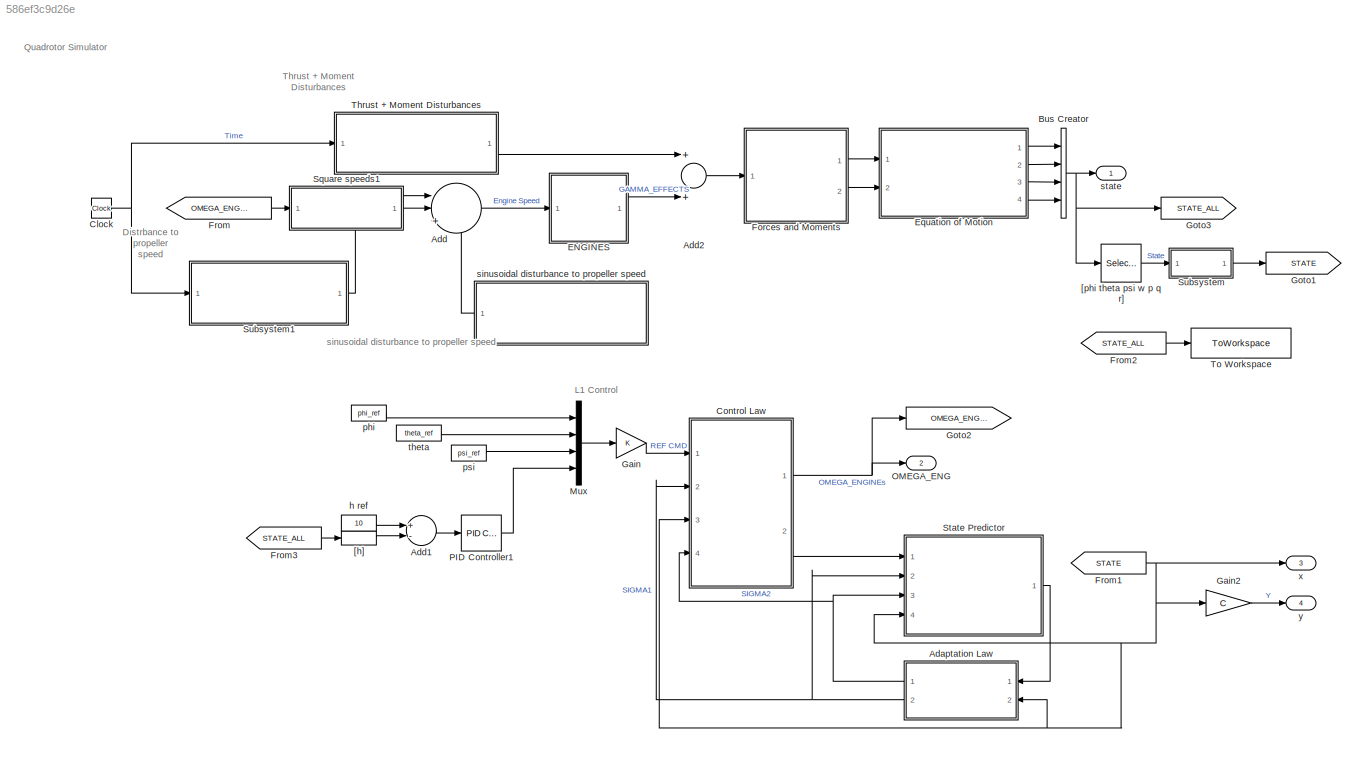
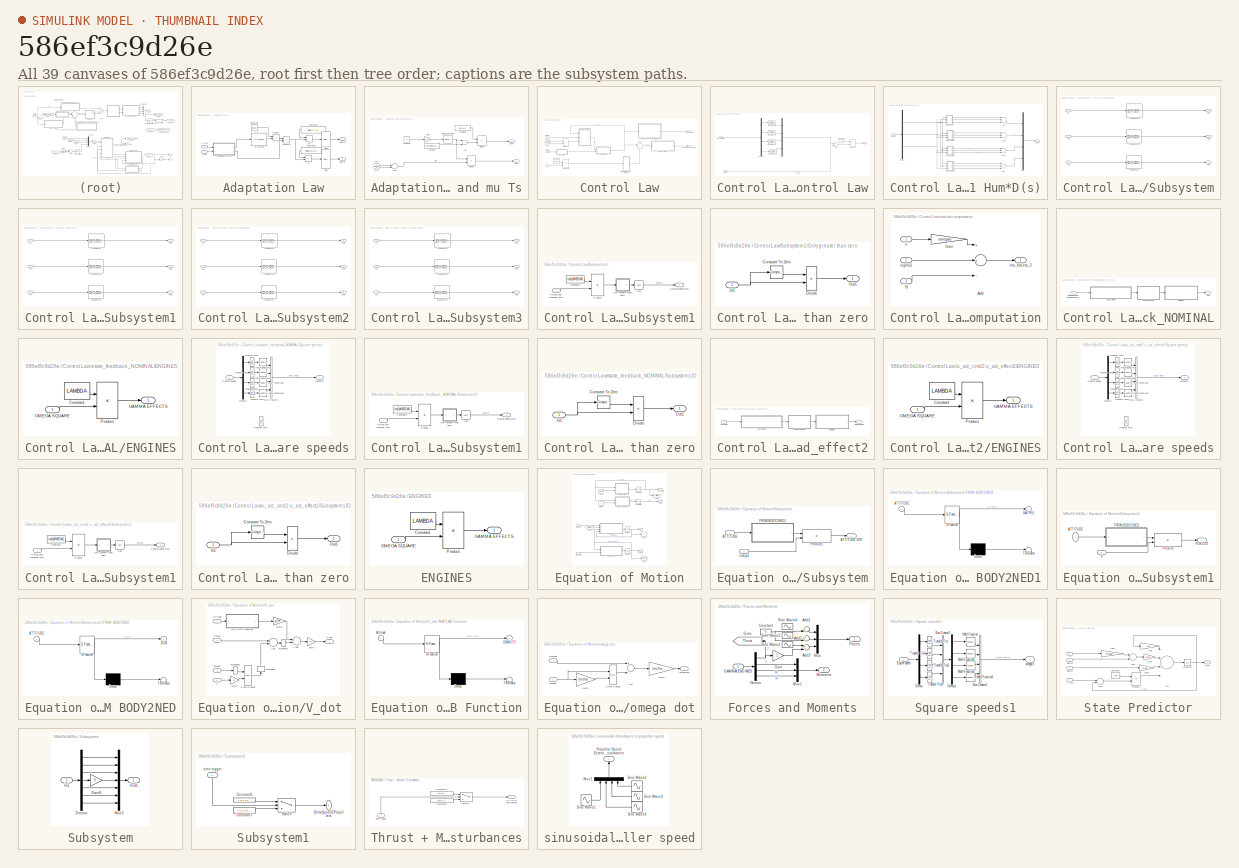
[diagram: thumbnail index - all 39 canvases of the model, root first then tree order]
MODEL slx_586ef3c9d26e
KIND model
CONFIG AbsTol = auto
CONFIG EnableMultiTasking = off
CONFIG FixedStep = Ts
CONFIG MaxStep = auto
CONFIG MinStep = auto
CONFIG RelTol = 1e-3
CONFIG SampleTimeConstraint = Unconstrained
CONFIG Solver = ode4
CONFIG SolverName = ode4
CONFIG StartTime = 0.0
CONFIG StopTime = 150
BLOCK [SubSystem] Adaptation Law
  Ports = [2, 2]
  RequestExecContextInheritance = off
  Variant = off
BLOCK [Reference] Adaptation Law/ LU Inverse  REF=dspinverses/ LU Inverse
  Ports = [1, 1]
  SourceBlock = dspinverses/ LU Inverse
  SourceProductBaseCode = DS
  SourceProductName = DSP System Toolbox
  SourceType = LU Inverse
BLOCK [Constant] Adaptation Law/Constant
  Value = -inv(B)
BLOCK [Constant] Adaptation Law/Constant1
  Value = diag([1 1 1 1 0 0 0])
BLOCK [Constant] Adaptation Law/Constant2
  Value = diag([0 0 0 0 1 1 1])
BLOCK [Product] Adaptation Law/Product
  InputSameDT = off
  Multiplication = Matrix(*)
  OutDataTypeStr = Inherit: Inherit via internal rule
  Ports = [2, 1]
  RndMeth = Floor
  SaturateOnIntegerOverflow = off
BLOCK [Product] Adaptation Law/Product1
  InputSameDT = off
  Multiplication = Matrix(*)
  OutDataTypeStr = Inherit: Inherit via internal rule
  Ports = [2, 1]
  RndMeth = Floor
  SaturateOnIntegerOverflow = off
BLOCK [Selector] Adaptation Law/Sig1
  IndexOptions = Index vector (dialog)
  Indices = [1 2 3 4]
  InputPortWidth = 7
  OutputSizes = 1
  Ports = [1, 1]
BLOCK [Selector] Adaptation Law/Sig2
  IndexOptions = Index vector (dialog)
  Indices = [5 6 7]
  InputPortWidth = 7
  OutputSizes = 1
  Ports = [1, 1]
BLOCK [SubSystem] Adaptation Law/phi and mu Ts
  Ports = [2, 2]
  RequestExecContextInheritance = off
  Variant = off
BLOCK [Sum] Adaptation Law/phi and mu Ts/Add
  InputSameDT = off
  Inputs = +-
  OutDataTypeStr = Inherit: Inherit via internal rule
  Ports = [2, 1]
  SaturateOnIntegerOverflow = off
BLOCK [Sum] Adaptation Law/phi and mu Ts/Add1
  InputSameDT = off
  Inputs = +-
  OutDataTypeStr = Inherit: Inherit via internal rule
  Ports = [2, 1]
  SaturateOnIntegerOverflow = off
BLOCK [Constant] Adaptation Law/phi and mu Ts/Constant
  Value = eye(size(Am))
BLOCK [Constant] Adaptation Law/phi and mu Ts/Constant1
  Value = inv(Am)
BLOCK [Constant] Adaptation Law/phi and mu Ts/Constant2
  Value = Ts
BLOCK [Product] Adaptation Law/phi and mu Ts/Divide1
  InputSameDT = off
  Inputs = **
  Multiplication = Matrix(*)
  OutDataTypeStr = Inherit: Inherit via internal rule
  Ports = [2, 1]
  RndMeth = Floor
  SaturateOnIntegerOverflow = off
BLOCK [Product] Adaptation Law/phi and mu Ts/Divide2
  InputSameDT = off
  Inputs = **
  Multiplication = Matrix(*)
  OutDataTypeStr = Inherit: Inherit via internal rule
  Ports = [2, 1]
  RndMeth = Floor
  SaturateOnIntegerOverflow = off
BLOCK [Gain] Adaptation Law/phi and mu Ts/Gain
  Gain = Am
  OutDataTypeStr = Inherit: Inherit via internal rule
  ParamDataTypeStr = Inherit: Inherit via internal rule
  SaturateOnIntegerOverflow = off
BLOCK [Reference] Adaptation Law/phi and mu Ts/Matrix Exponential  REF=dspmtrx3/Matrix
Exponential
  Ports = [1, 1]
  SourceBlock = dspmtrx3/Matrix\nExponential
  SourceProductBaseCode = DS
  SourceProductName = DSP System Toolbox
  SourceType = Matrix Exponential
BLOCK [Outport] Adaptation Law/phi and mu Ts/mu Ts
  IconDisplay = Port number
  Port = 2
BLOCK [Outport] Adaptation Law/phi and mu Ts/phi Ts
  IconDisplay = Port number
BLOCK [Inport] Adaptation Law/phi and mu Ts/x hat
  IconDisplay = Port number
  Port = 2
BLOCK [Inport] Adaptation Law/phi and mu Ts/x true
  IconDisplay = Port number
BLOCK [Product] Adaptation Law/s1
  InputSameDT = off
  Multiplication = Matrix(*)
  OutDataTypeStr = Inherit: Inherit via internal rule
  Ports = [2, 1]
  RndMeth = Floor
  SaturateOnIntegerOverflow = off
BLOCK [Product] Adaptation Law/s2
  InputSameDT = off
  Multiplication = Matrix(*)
  OutDataTypeStr = Inherit: Inherit via internal rule
  Ports = [2, 1]
  RndMeth = Floor
  SaturateOnIntegerOverflow = off
BLOCK [Outport] Adaptation Law/sigma1
  IconDisplay = Port number
  Port = 2
BLOCK [Outport] Adaptation Law/sigma2
  IconDisplay = Port number
BLOCK [Inport] Adaptation Law/x hat
  IconDisplay = Port number
BLOCK [Inport] Adaptation Law/x true
  IconDisplay = Port number
  Port = 2
BLOCK [Sum] Add
  IconShape = round
  InputSameDT = off
  Inputs = ||+++
  OutDataTypeStr = Inherit: Inherit via internal rule
  Ports = [3, 1]
  SaturateOnIntegerOverflow = off
BLOCK [Sum] Add1
  InputSameDT = off
  Inputs = +-
  OutDataTypeStr = Inherit: Inherit via internal rule
  Ports = [2, 1]
  SaturateOnIntegerOverflow = off
BLOCK [Sum] Add2
  InputSameDT = off
  OutDataTypeStr = Inherit: Inherit via internal rule
  Ports = [2, 1]
  SaturateOnIntegerOverflow = off
BLOCK [BusCreator] Bus Creator
  DisplayOption = bar
  InheritFromInputs = on
  Inputs = 4
  Ports = [4, 1]
BLOCK [Clock] Clock
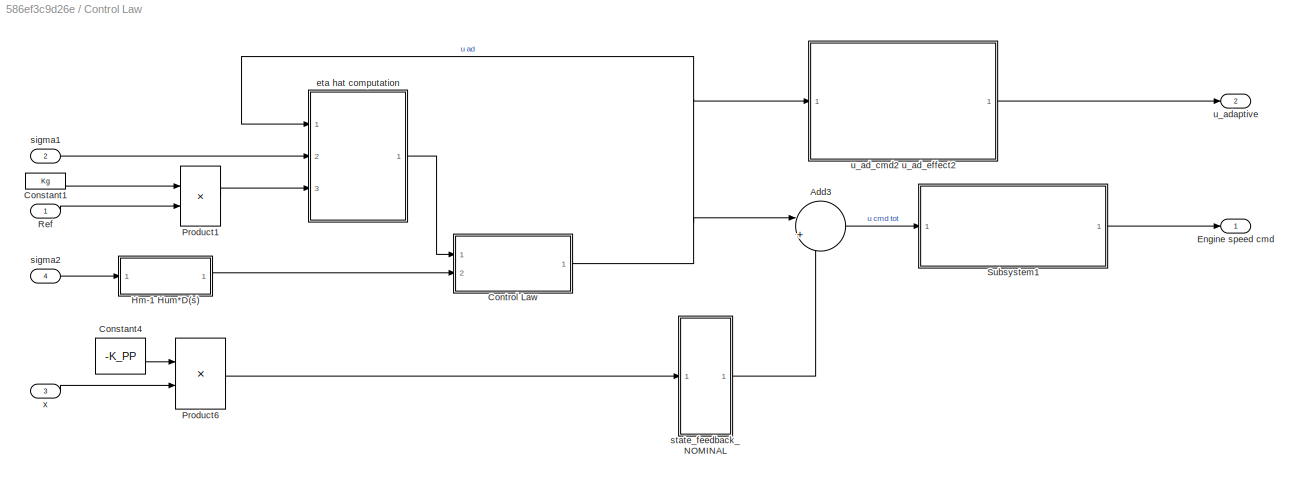
BLOCK [SubSystem] Control Law
  Ports = [4, 2]
  RequestExecContextInheritance = off
  Variant = off
BLOCK [Sum] Control Law/Add3
  IconShape = round
  InputSameDT = off
  Inputs = |++
  OutDataTypeStr = Inherit: Inherit via internal rule
  Ports = [2, 1]
  SaturateOnIntegerOverflow = off
BLOCK [Constant] Control Law/Constant1
  Value = Kg
BLOCK [Constant] Control Law/Constant4
  Value = -K_PP
BLOCK [SubSystem] Control Law/Control Law
  Ports = [2, 1]
  RequestExecContextInheritance = off
  Variant = off
BLOCK [Sum] Control Law/Control Law/Add2
  InputSameDT = off
  OutDataTypeStr = Inherit: Inherit via internal rule
  Ports = [2, 1]
  SaturateOnIntegerOverflow = off
BLOCK [Constant] Control Law/Control Law/Constant1
  Value = -K
BLOCK [Demux] Control Law/Control Law/Demux
  DisplayOption = bar
  Ports = [1, 4]
BLOCK [Mux] Control Law/Control Law/Mux
  DisplayOption = bar
  Ports = [4, 1]
BLOCK [Product] Control Law/Control Law/Product1
  InputSameDT = off
  Multiplication = Matrix(*)
  OutDataTypeStr = Inherit: Inherit via internal rule
  Ports = [2, 1]
  SaturateOnIntegerOverflow = off
BLOCK [TransferFcn] Control Law/Control Law/Transfer Fcn
  Denominator = denD
  Numerator = numD
BLOCK [TransferFcn] Control Law/Control Law/Transfer Fcn1
  Denominator = denD
  Numerator = numD
BLOCK [TransferFcn] Control Law/Control Law/Transfer Fcn2
  Denominator = denD
  Numerator = numD
BLOCK [TransferFcn] Control Law/Control Law/Transfer Fcn3
  Denominator = denD
  Numerator = numD
BLOCK [Inport] Control Law/Control Law/eta2
  IconDisplay = Port number
  Port = 2
BLOCK [Inport] Control Law/Control Law/eta_hat-eta2
  IconDisplay = Port number
BLOCK [Outport] Control Law/Control Law/u
  IconDisplay = Port number
BLOCK [Outport] Control Law/Engine speed cmd
  IconDisplay = Port number
BLOCK [SubSystem] Control Law/Hm-1 Hum*D(s)
  Ports = [1, 1]
  RequestExecContextInheritance = off
  Variant = off
BLOCK [Sum] Control Law/Hm-1 Hum*D(s)/Add
  InputSameDT = off
  Inputs = +++
  OutDataTypeStr = Inherit: Inherit via internal rule
  Ports = [3, 1]
  SaturateOnIntegerOverflow = off
BLOCK [Sum] Control Law/Hm-1 Hum*D(s)/Add1
  InputSameDT = off
  Inputs = +++
  OutDataTypeStr = Inherit: Inherit via internal rule
  Ports = [3, 1]
  SaturateOnIntegerOverflow = off
BLOCK [Sum] Control Law/Hm-1 Hum*D(s)/Add2
  InputSameDT = off
  Inputs = +++
  OutDataTypeStr = Inherit: Inherit via internal rule
  Ports = [3, 1]
  SaturateOnIntegerOverflow = off
BLOCK [Sum] Control Law/Hm-1 Hum*D(s)/Add3
  InputSameDT = off
  Inputs = +++
  OutDataTypeStr = Inherit: Inherit via internal rule
  Ports = [3, 1]
  SaturateOnIntegerOverflow = off
BLOCK [Demux] Control Law/Hm-1 Hum*D(s)/Demux
  DisplayOption = bar
  Outputs = 3
  Ports = [1, 3]
BLOCK [Mux] Control Law/Hm-1 Hum*D(s)/Mux
  DisplayOption = bar
  Ports = [4, 1]
BLOCK [SubSystem] Control Law/Hm-1 Hum*D(s)/Subsystem
  Ports = [3, 3]
  RequestExecContextInheritance = off
  Variant = off
BLOCK [Inport] Control Law/Hm-1 Hum*D(s)/Subsystem/In1
  IconDisplay = Port number
BLOCK [Inport] Control Law/Hm-1 Hum*D(s)/Subsystem/In2
  IconDisplay = Port number
  Port = 2
BLOCK [Inport] Control Law/Hm-1 Hum*D(s)/Subsystem/In3
  IconDisplay = Port number
  Port = 3
BLOCK [Outport] Control Law/Hm-1 Hum*D(s)/Subsystem/Out1
  IconDisplay = Port number
BLOCK [Outport] Control Law/Hm-1 Hum*D(s)/Subsystem/Out2
  IconDisplay = Port number
  Port = 2
BLOCK [Outport] Control Law/Hm-1 Hum*D(s)/Subsystem/Out3
  IconDisplay = Port number
  Port = 3
BLOCK [TransferFcn] Control Law/Hm-1 Hum*D(s)/Subsystem/Transfer Fcn
  Denominator = DEN_TF_eta2m_11
  Numerator = NUM_TF_eta2m_11
BLOCK [TransferFcn] Control Law/Hm-1 Hum*D(s)/Subsystem/Transfer Fcn1
  Denominator = DEN_TF_eta2m_13
  Numerator = NUM_TF_eta2m_13
BLOCK [TransferFcn] Control Law/Hm-1 Hum*D(s)/Subsystem/Transfer Fcn3
  Denominator = DEN_TF_eta2m_12
  Numerator = NUM_TF_eta2m_12
BLOCK [SubSystem] Control Law/Hm-1 Hum*D(s)/Subsystem1
  Ports = [3, 3]
  RequestExecContextInheritance = off
  Variant = off
BLOCK [Inport] Control Law/Hm-1 Hum*D(s)/Subsystem1/In1
  IconDisplay = Port number
BLOCK [Inport] Control Law/Hm-1 Hum*D(s)/Subsystem1/In2
  IconDisplay = Port number
  Port = 2
BLOCK [Inport] Control Law/Hm-1 Hum*D(s)/Subsystem1/In3
  IconDisplay = Port number
  Port = 3
BLOCK [Outport] Control Law/Hm-1 Hum*D(s)/Subsystem1/Out1
  IconDisplay = Port number
BLOCK [Outport] Control Law/Hm-1 Hum*D(s)/Subsystem1/Out2
  IconDisplay = Port number
  Port = 2
BLOCK [Outport] Control Law/Hm-1 Hum*D(s)/Subsystem1/Out3
  IconDisplay = Port number
  Port = 3
BLOCK [TransferFcn] Control Law/Hm-1 Hum*D(s)/Subsystem1/Transfer Fcn
  Denominator = DEN_TF_eta2m_21
  Numerator = NUM_TF_eta2m_21
BLOCK [TransferFcn] Control Law/Hm-1 Hum*D(s)/Subsystem1/Transfer Fcn1
  Denominator = DEN_TF_eta2m_23
  Numerator = NUM_TF_eta2m_23
BLOCK [TransferFcn] Control Law/Hm-1 Hum*D(s)/Subsystem1/Transfer Fcn3
  Denominator = DEN_TF_eta2m_22
  Numerator = NUM_TF_eta2m_22
BLOCK [SubSystem] Control Law/Hm-1 Hum*D(s)/Subsystem2
  Ports = [3, 3]
  RequestExecContextInheritance = off
  Variant = off
BLOCK [Inport] Control Law/Hm-1 Hum*D(s)/Subsystem2/In1
  IconDisplay = Port number
BLOCK [Inport] Control Law/Hm-1 Hum*D(s)/Subsystem2/In2
  IconDisplay = Port number
  Port = 2
BLOCK [Inport] Control Law/Hm-1 Hum*D(s)/Subsystem2/In3
  IconDisplay = Port number
  Port = 3
BLOCK [Outport] Control Law/Hm-1 Hum*D(s)/Subsystem2/Out1
  IconDisplay = Port number
BLOCK [Outport] Control Law/Hm-1 Hum*D(s)/Subsystem2/Out2
  IconDisplay = Port number
  Port = 2
BLOCK [Outport] Control Law/Hm-1 Hum*D(s)/Subsystem2/Out3
  IconDisplay = Port number
  Port = 3
BLOCK [TransferFcn] Control Law/Hm-1 Hum*D(s)/Subsystem2/Transfer Fcn
  Denominator = DEN_TF_eta2m_31
  Numerator = NUM_TF_eta2m_31
BLOCK [TransferFcn] Control Law/Hm-1 Hum*D(s)/Subsystem2/Transfer Fcn1
  Denominator = DEN_TF_eta2m_33
  Numerator = NUM_TF_eta2m_33
BLOCK [TransferFcn] Control Law/Hm-1 Hum*D(s)/Subsystem2/Transfer Fcn3
  Denominator = DEN_TF_eta2m_32
  Numerator = NUM_TF_eta2m_32
BLOCK [SubSystem] Control Law/Hm-1 Hum*D(s)/Subsystem3
  Ports = [3, 3]
  RequestExecContextInheritance = off
  Variant = off
BLOCK [Inport] Control Law/Hm-1 Hum*D(s)/Subsystem3/In1
  IconDisplay = Port number
BLOCK [Inport] Control Law/Hm-1 Hum*D(s)/Subsystem3/In2
  IconDisplay = Port number
  Port = 2
BLOCK [Inport] Control Law/Hm-1 Hum*D(s)/Subsystem3/In3
  IconDisplay = Port number
  Port = 3
BLOCK [Outport] Control Law/Hm-1 Hum*D(s)/Subsystem3/Out1
  IconDisplay = Port number
BLOCK [Outport] Control Law/Hm-1 Hum*D(s)/Subsystem3/Out2
  IconDisplay = Port number
  Port = 2
BLOCK [Outport] Control Law/Hm-1 Hum*D(s)/Subsystem3/Out3
  IconDisplay = Port number
  Port = 3
BLOCK [TransferFcn] Control Law/Hm-1 Hum*D(s)/Subsystem3/Transfer Fcn
  Denominator = DEN_TF_eta2m_41
  Numerator = NUM_TF_eta2m_41
BLOCK [TransferFcn] Control Law/Hm-1 Hum*D(s)/Subsystem3/Transfer Fcn1
  Denominator = DEN_TF_eta2m_43
  Numerator = NUM_TF_eta2m_43
BLOCK [TransferFcn] Control Law/Hm-1 Hum*D(s)/Subsystem3/Transfer Fcn3
  Denominator = DEN_TF_eta2m_42
  Numerator = NUM_TF_eta2m_42
BLOCK [Outport] Control Law/Hm-1 Hum*D(s)/eta2m
  IconDisplay = Port number
BLOCK [Inport] Control Law/Hm-1 Hum*D(s)/sigma2
  IconDisplay = Port number
BLOCK [Product] Control Law/Product1
  InputSameDT = off
  Multiplication = Matrix(*)
  OutDataTypeStr = Inherit: Inherit via internal rule
  Ports = [2, 1]
  SaturateOnIntegerOverflow = off
BLOCK [Product] Control Law/Product6
  InputSameDT = off
  Multiplication = Matrix(*)
  OutDataTypeStr = Inherit: Inherit via internal rule
  Ports = [2, 1]
  SaturateOnIntegerOverflow = off
BLOCK [Inport] Control Law/Ref
  IconDisplay = Port number
BLOCK [SubSystem] Control Law/Subsystem1
  Ports = [1, 1]
  RequestExecContextInheritance = off
  Variant = off
BLOCK [Constant] Control Law/Subsystem1/Constant1
  Value = inv(LAMBDA)
BLOCK [Outport] Control Law/Subsystem1/Engine speed cmd
  IconDisplay = Port number
BLOCK [Inport] Control Law/Subsystem1/Forces and moment cmd
  IconDisplay = Port number
BLOCK [SubSystem] Control Law/Subsystem1/Only greater than zero
  Ports = [1, 1]
  RequestExecContextInheritance = off
  Variant = off
BLOCK [Reference] Control Law/Subsystem1/Only greater than zero/Compare To Zero  REF=simulink/Logic and Bit
Operations/Compare
To Zero
  Ports = [1, 1]
  SourceBlock = simulink/Logic and Bit\nOperations/Compare\nTo Zero
  SourceProductBaseCode = SL
  SourceProductName = Simulink
  SourceType = Compare To Zero
BLOCK [Product] Control Law/Subsystem1/Only greater than zero/Divide
  InputSameDT = off
  Inputs = **
  OutDataTypeStr = Inherit: Inherit via internal rule
  Ports = [2, 1]
  RndMeth = Floor
  SaturateOnIntegerOverflow = off
BLOCK [Inport] Control Law/Subsystem1/Only greater than zero/In1
  IconDisplay = Port number
BLOCK [Outport] Control Law/Subsystem1/Only greater than zero/Out1
  IconDisplay = Port number
BLOCK [Product] Control Law/Subsystem1/Product
  InputSameDT = off
  Multiplication = Matrix(*)
  OutDataTypeStr = Inherit: Inherit via internal rule
  Ports = [2, 1]
  RndMeth = Floor
  SaturateOnIntegerOverflow = off
BLOCK [Sqrt] Control Law/Subsystem1/Sqrt
  OutputSignalType = real
BLOCK [SubSystem] Control Law/eta hat computation
  Ports = [3, 1]
  RequestExecContextInheritance = off
  Variant = off
BLOCK [Sum] Control Law/eta hat computation/Add
  InputSameDT = off
  Inputs = ++-
  OutDataTypeStr = Inherit: Inherit via internal rule
  Ports = [3, 1]
  SaturateOnIntegerOverflow = off
BLOCK [Gain] Control Law/eta hat computation/Gain
  Gain = omega0
  Multiplication = Matrix(K*u)
  OutDataTypeStr = Inherit: Inherit via internal rule
  ParamDataTypeStr = Inherit: Inherit via internal rule
  SaturateOnIntegerOverflow = off
BLOCK [Outport] Control Law/eta hat computation/eta_hat-eta_2
  IconDisplay = Port number
BLOCK [Inport] Control Law/eta hat computation/rg
  IconDisplay = Port number
  Port = 3
BLOCK [Inport] Control Law/eta hat computation/sigma1
  IconDisplay = Port number
  Port = 2
BLOCK [Inport] Control Law/eta hat computation/u
  IconDisplay = Port number
BLOCK [Inport] Control Law/sigma1
  IconDisplay = Port number
  Port = 2
BLOCK [Inport] Control Law/sigma2
  IconDisplay = Port number
  Port = 4
BLOCK [SubSystem] Control Law/state_feedback_NOMINAL
  Ports = [1, 1]
  RequestExecContextInheritance = off
  Variant = off
BLOCK [SubSystem] Control Law/state_feedback_NOMINAL/ENGINES
  Ports = [1, 1]
  RequestExecContextInheritance = off
  Variant = off
BLOCK [Constant] Control Law/state_feedback_NOMINAL/ENGINES/Constant
  Value = LAMBDA
BLOCK [Outport] Control Law/state_feedback_NOMINAL/ENGINES/GAMMA EFFECTS
  IconDisplay = Port number
BLOCK [Inport] Control Law/state_feedback_NOMINAL/ENGINES/OMEGA  SQUARE
  IconDisplay = Port number
BLOCK [Product] Control Law/state_feedback_NOMINAL/ENGINES/Product
  InputSameDT = off
  Multiplication = Matrix(*)
  OutDataTypeStr = Inherit: Inherit via internal rule
  Ports = [2, 1]
  RndMeth = Floor
  SaturateOnIntegerOverflow = off
BLOCK [Inport] Control Law/state_feedback_NOMINAL/Nominal FORCES MOMENT Request
  IconDisplay = Port number
BLOCK [Outport] Control Law/state_feedback_NOMINAL/Out1
  IconDisplay = Port number
BLOCK [SubSystem] Control Law/state_feedback_NOMINAL/Square speeds
  Ports = [1, 1]
  RequestExecContextInheritance = off
  Variant = off
BLOCK [BusCreator] Control Law/state_feedback_NOMINAL/Square speeds/Bus Creator1
  DisplayOption = bar
  InheritFromInputs = on
  Inputs = 4
  Ports = [4, 1]
BLOCK [Demux] Control Law/state_feedback_NOMINAL/Square speeds/Demux
  DisplayOption = bar
  Ports = [1, 4]
BLOCK [Inport] Control Law/state_feedback_NOMINAL/Square speeds/Engine speed
  IconDisplay = Port number
BLOCK [Math] Control Law/state_feedback_NOMINAL/Square speeds/Math Function
  Operator = magnitude^2
  OutputSignalType = real
  Ports = [1, 1]
BLOCK [Math] Control Law/state_feedback_NOMINAL/Square speeds/Math Function1
  Operator = magnitude^2
  OutputSignalType = real
  Ports = [1, 1]
BLOCK [Math] Control Law/state_feedback_NOMINAL/Square speeds/Math Function2
  Operator = magnitude^2
  OutputSignalType = real
  Ports = [1, 1]
BLOCK [Math] Control Law/state_feedback_NOMINAL/Square speeds/Math Function3
  Operator = magnitude^2
  OutputSignalType = real
  Ports = [1, 1]
BLOCK [TransferFcn] Control Law/state_feedback_NOMINAL/Square speeds/Transfer Fcn1
  Denominator = [.05 1]
BLOCK [TransferFcn] Control Law/state_feedback_NOMINAL/Square speeds/Transfer Fcn2
  Denominator = [.05 1]
BLOCK [TransferFcn] Control Law/state_feedback_NOMINAL/Square speeds/Transfer Fcn3
  Denominator = [.05 1]
BLOCK [TransferFcn] Control Law/state_feedback_NOMINAL/Square speeds/Transfer Fcn4
  Denominator = [.05 1]
BLOCK [TransferFcn] Control Law/state_feedback_NOMINAL/Square speeds/Transfer Fcn5
  Denominator = [.01 1]
BLOCK [Outport] Control Law/state_feedback_NOMINAL/Square speeds/omega^2
  IconDisplay = Port number
BLOCK [SubSystem] Control Law/state_feedback_NOMINAL/Subsystem1
  Ports = [1, 1]
  RequestExecContextInheritance = off
  Variant = off
BLOCK [Constant] Control Law/state_feedback_NOMINAL/Subsystem1/Constant1
  Value = inv(LAMBDA)
BLOCK [Outport] Control Law/state_feedback_NOMINAL/Subsystem1/Engine speed cmd
  IconDisplay = Port number
BLOCK [Inport] Control Law/state_feedback_NOMINAL/Subsystem1/Forces and moment cmd
  IconDisplay = Port number
BLOCK [SubSystem] Control Law/state_feedback_NOMINAL/Subsystem1/Only greater than zero
  Ports = [1, 1]
  RequestExecContextInheritance = off
  Variant = off
BLOCK [Reference] Control Law/state_feedback_NOMINAL/Subsystem1/Only greater than zero/Compare To Zero  REF=simulink/Logic and Bit
Operations/Compare
To Zero
  Ports = [1, 1]
  SourceBlock = simulink/Logic and Bit\nOperations/Compare\nTo Zero
  SourceProductBaseCode = SL
  SourceProductName = Simulink
  SourceType = Compare To Zero
BLOCK [Product] Control Law/state_feedback_NOMINAL/Subsystem1/Only greater than zero/Divide
  InputSameDT = off
  Inputs = **
  OutDataTypeStr = Inherit: Inherit via internal rule
  Ports = [2, 1]
  RndMeth = Floor
  SaturateOnIntegerOverflow = off
BLOCK [Inport] Control Law/state_feedback_NOMINAL/Subsystem1/Only greater than zero/In1
  IconDisplay = Port number
BLOCK [Outport] Control Law/state_feedback_NOMINAL/Subsystem1/Only greater than zero/Out1
  IconDisplay = Port number
BLOCK [Product] Control Law/state_feedback_NOMINAL/Subsystem1/Product
  InputSameDT = off
  Multiplication = Matrix(*)
  OutDataTypeStr = Inherit: Inherit via internal rule
  Ports = [2, 1]
  RndMeth = Floor
  SaturateOnIntegerOverflow = off
BLOCK [Sqrt] Control Law/state_feedback_NOMINAL/Subsystem1/Sqrt
  OutputSignalType = real
BLOCK [SubSystem] Control Law/u_ad_cmd2 u_ad_effect2
  Ports = [1, 1]
  RequestExecContextInheritance = off
  Variant = off
BLOCK [SubSystem] Control Law/u_ad_cmd2 u_ad_effect2/ENGINES
  Ports = [1, 1]
  RequestExecContextInheritance = off
  Variant = off
BLOCK [Constant] Control Law/u_ad_cmd2 u_ad_effect2/ENGINES/Constant
  Value = LAMBDA
BLOCK [Outport] Control Law/u_ad_cmd2 u_ad_effect2/ENGINES/GAMMA EFFECTS
  IconDisplay = Port number
BLOCK [Inport] Control Law/u_ad_cmd2 u_ad_effect2/ENGINES/OMEGA  SQUARE
  IconDisplay = Port number
BLOCK [Product] Control Law/u_ad_cmd2 u_ad_effect2/ENGINES/Product
  InputSameDT = off
  Multiplication = Matrix(*)
  OutDataTypeStr = Inherit: Inherit via internal rule
  Ports = [2, 1]
  RndMeth = Floor
  SaturateOnIntegerOverflow = off
BLOCK [Outport] Control Law/u_ad_cmd2 u_ad_effect2/Effect adaptive
  IconDisplay = Port number
BLOCK [SubSystem] Control Law/u_ad_cmd2 u_ad_effect2/Square speeds
  Ports = [1, 1]
  RequestExecContextInheritance = off
  Variant = off
BLOCK [BusCreator] Control Law/u_ad_cmd2 u_ad_effect2/Square speeds/Bus Creator1
  DisplayOption = bar
  InheritFromInputs = on
  Inputs = 4
  Ports = [4, 1]
BLOCK [Demux] Control Law/u_ad_cmd2 u_ad_effect2/Square speeds/Demux
  DisplayOption = bar
  Ports = [1, 4]
BLOCK [Inport] Control Law/u_ad_cmd2 u_ad_effect2/Square speeds/Engine speed
  IconDisplay = Port number
BLOCK [Math] Control Law/u_ad_cmd2 u_ad_effect2/Square speeds/Math Function
  Operator = magnitude^2
  OutputSignalType = real
  Ports = [1, 1]
BLOCK [Math] Control Law/u_ad_cmd2 u_ad_effect2/Square speeds/Math Function1
  Operator = magnitude^2
  OutputSignalType = real
  Ports = [1, 1]
BLOCK [Math] Control Law/u_ad_cmd2 u_ad_effect2/Square speeds/Math Function2
  Operator = magnitude^2
  OutputSignalType = real
  Ports = [1, 1]
BLOCK [Math] Control Law/u_ad_cmd2 u_ad_effect2/Square speeds/Math Function3
  Operator = magnitude^2
  OutputSignalType = real
  Ports = [1, 1]
BLOCK [TransferFcn] Control Law/u_ad_cmd2 u_ad_effect2/Square speeds/Transfer Fcn1
  Denominator = [.05 1]
BLOCK [TransferFcn] Control Law/u_ad_cmd2 u_ad_effect2/Square speeds/Transfer Fcn2
  Denominator = [.05 1]
BLOCK [TransferFcn] Control Law/u_ad_cmd2 u_ad_effect2/Square speeds/Transfer Fcn3
  Denominator = [.05 1]
BLOCK [TransferFcn] Control Law/u_ad_cmd2 u_ad_effect2/Square speeds/Transfer Fcn4
  Denominator = [.05 1]
BLOCK [TransferFcn] Control Law/u_ad_cmd2 u_ad_effect2/Square speeds/Transfer Fcn5
  Denominator = [.01 1]
BLOCK [Outport] Control Law/u_ad_cmd2 u_ad_effect2/Square speeds/omega^2
  IconDisplay = Port number
BLOCK [SubSystem] Control Law/u_ad_cmd2 u_ad_effect2/Subsystem1
  Ports = [1, 1]
  RequestExecContextInheritance = off
  Variant = off
BLOCK [Constant] Control Law/u_ad_cmd2 u_ad_effect2/Subsystem1/Constant1
  Value = inv(LAMBDA)
BLOCK [Outport] Control Law/u_ad_cmd2 u_ad_effect2/Subsystem1/Engine speed cmd
  IconDisplay = Port number
BLOCK [Inport] Control Law/u_ad_cmd2 u_ad_effect2/Subsystem1/Forces and moment cmd
  IconDisplay = Port number
BLOCK [SubSystem] Control Law/u_ad_cmd2 u_ad_effect2/Subsystem1/Only greater than zero
  Ports = [1, 1]
  RequestExecContextInheritance = off
  Variant = off
BLOCK [Reference] Control Law/u_ad_cmd2 u_ad_effect2/Subsystem1/Only greater than zero/Compare To Zero  REF=simulink/Logic and Bit
Operations/Compare
To Zero
  Ports = [1, 1]
  SourceBlock = simulink/Logic and Bit\nOperations/Compare\nTo Zero
  SourceProductBaseCode = SL
  SourceProductName = Simulink
  SourceType = Compare To Zero
BLOCK [Product] Control Law/u_ad_cmd2 u_ad_effect2/Subsystem1/Only greater than zero/Divide
  InputSameDT = off
  Inputs = **
  OutDataTypeStr = Inherit: Inherit via internal rule
  Ports = [2, 1]
  RndMeth = Floor
  SaturateOnIntegerOverflow = off
BLOCK [Inport] Control Law/u_ad_cmd2 u_ad_effect2/Subsystem1/Only greater than zero/In1
  IconDisplay = Port number
BLOCK [Outport] Control Law/u_ad_cmd2 u_ad_effect2/Subsystem1/Only greater than zero/Out1
  IconDisplay = Port number
BLOCK [Product] Control Law/u_ad_cmd2 u_ad_effect2/Subsystem1/Product
  InputSameDT = off
  Multiplication = Matrix(*)
  OutDataTypeStr = Inherit: Inherit via internal rule
  Ports = [2, 1]
  RndMeth = Floor
  SaturateOnIntegerOverflow = off
BLOCK [Sqrt] Control Law/u_ad_cmd2 u_ad_effect2/Subsystem1/Sqrt
  OutputSignalType = real
BLOCK [Inport] Control Law/u_ad_cmd2 u_ad_effect2/u adaptive
  IconDisplay = Port number
BLOCK [Outport] Control Law/u_adaptive
  IconDisplay = Port number
  Port = 2
BLOCK [Inport] Control Law/x
  IconDisplay = Port number
  Port = 3
BLOCK [SubSystem] ENGINES
  Ports = [1, 1]
  RequestExecContextInheritance = off
  Variant = off
BLOCK [Constant] ENGINES/Constant
  Value = LAMBDA
BLOCK [Outport] ENGINES/GAMMA EFFECTS
  IconDisplay = Port number
BLOCK [Inport] ENGINES/OMEGA  SQUARE
  IconDisplay = Port number
BLOCK [Product] ENGINES/Product
  InputSameDT = off
  Multiplication = Matrix(*)
  OutDataTypeStr = Inherit: Inherit via internal rule
  Ports = [2, 1]
  RndMeth = Floor
  SaturateOnIntegerOverflow = off
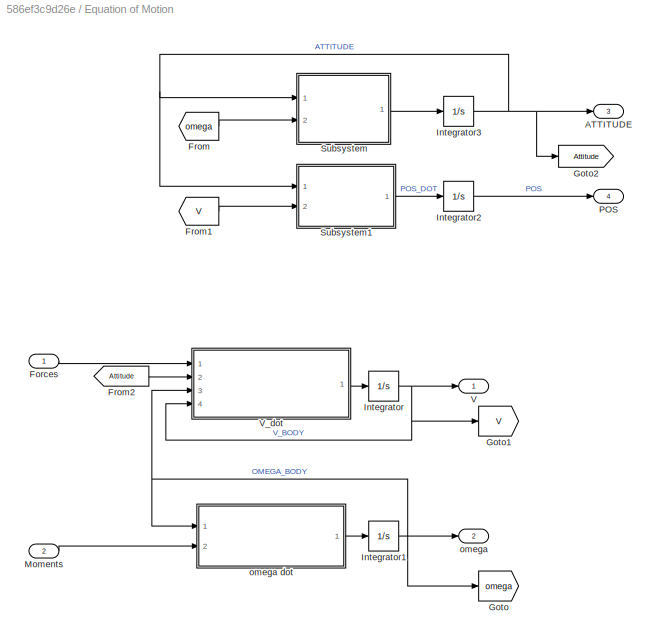
BLOCK [SubSystem] Equation of Motion
  Ports = [2, 4]
  RequestExecContextInheritance = off
  Variant = off
BLOCK [Outport] Equation of Motion/ATTITUDE
  IconDisplay = Port number
  Port = 3
BLOCK [Inport] Equation of Motion/Forces
  IconDisplay = Port number
BLOCK [From] Equation of Motion/From
  GotoTag = omega
BLOCK [From] Equation of Motion/From1
  GotoTag = V
BLOCK [From] Equation of Motion/From2
  GotoTag = Attitude
BLOCK [Goto] Equation of Motion/Goto
  GotoTag = omega
BLOCK [Goto] Equation of Motion/Goto1
  GotoTag = V
BLOCK [Goto] Equation of Motion/Goto2
  GotoTag = Attitude
BLOCK [Integrator] Equation of Motion/Integrator
  InitialCondition = V0
  Ports = [1, 1]
BLOCK [Integrator] Equation of Motion/Integrator1
  InitialCondition = omega_start
  Ports = [1, 1]
BLOCK [Integrator] Equation of Motion/Integrator2
  InitialCondition = POS0
  Ports = [1, 1]
BLOCK [Integrator] Equation of Motion/Integrator3
  InitialCondition = ATTITUDE0
  Ports = [1, 1]
BLOCK [Inport] Equation of Motion/Moments
  IconDisplay = Port number
  Port = 2
BLOCK [Outport] Equation of Motion/POS
  IconDisplay = Port number
  Port = 4
BLOCK [SubSystem] Equation of Motion/Subsystem
  Ports = [2, 1]
  RequestExecContextInheritance = off
  Variant = off
BLOCK [Inport] Equation of Motion/Subsystem/ATTITUDE
  IconDisplay = Port number
BLOCK [Outport] Equation of Motion/Subsystem/ATTITUDE DOT
  IconDisplay = Port number
BLOCK [SubSystem] Equation of Motion/Subsystem/FROM BODY2NED1
  ErrorFcn = Stateflow.Translate.translate
  PermitHierarchicalResolution = ExplicitOnly
  Ports = [1, 1]
  RequestExecContextInheritance = off
  SFBlockType = MATLAB Function
  TreatAsAtomicUnit = on
  Variant = off
BLOCK [Demux] Equation of Motion/Subsystem/FROM BODY2NED1/ Demux 
  Outputs = 1
  Ports = [1, 1]
BLOCK [S-Function] Equation of Motion/Subsystem/FROM BODY2NED1/ SFunction 
  EnableBusSupport = on
  FunctionName = sf_sfun
  PortCounts = [1 2]
  Ports = [1, 2]
  SFcnIsStateOwnerBlock = off
  SFunctionDeploymentMode = off
  Tag = Stateflow S-Function Quad2 1
BLOCK [Terminator] Equation of Motion/Subsystem/FROM BODY2NED1/ Terminator 
BLOCK [Inport] Equation of Motion/Subsystem/FROM BODY2NED1/ATTITUDE
  IconDisplay = Port number
BLOCK [Outport] Equation of Motion/Subsystem/FROM BODY2NED1/MATRIX
  IconDisplay = Port number
BLOCK [Product] Equation of Motion/Subsystem/Product1
  InputSameDT = off
  Multiplication = Matrix(*)
  OutDataTypeStr = Inherit: Inherit via internal rule
  Ports = [2, 1]
  RndMeth = Floor
  SaturateOnIntegerOverflow = off
BLOCK [Inport] Equation of Motion/Subsystem/omega
  IconDisplay = Port number
  Port = 2
BLOCK [SubSystem] Equation of Motion/Subsystem1
  Ports = [2, 1]
  RequestExecContextInheritance = off
  Variant = off
BLOCK [Inport] Equation of Motion/Subsystem1/ATTITUDE
  IconDisplay = Port number
BLOCK [SubSystem] Equation of Motion/Subsystem1/FROM BODY2NED
  ErrorFcn = Stateflow.Translate.translate
  PermitHierarchicalResolution = ExplicitOnly
  Ports = [1, 1]
  RequestExecContextInheritance = off
  SFBlockType = MATLAB Function
  TreatAsAtomicUnit = on
  Variant = off
BLOCK [Demux] Equation of Motion/Subsystem1/FROM BODY2NED/ Demux 
  Outputs = 1
  Ports = [1, 1]
BLOCK [S-Function] Equation of Motion/Subsystem1/FROM BODY2NED/ SFunction 
  EnableBusSupport = on
  FunctionName = sf_sfun
  PortCounts = [1 2]
  Ports = [1, 2]
  SFcnIsStateOwnerBlock = off
  SFunctionDeploymentMode = off
  Tag = Stateflow S-Function Quad2 2
BLOCK [Terminator] Equation of Motion/Subsystem1/FROM BODY2NED/ Terminator 
BLOCK [Inport] Equation of Motion/Subsystem1/FROM BODY2NED/ATTITUDE
  IconDisplay = Port number
BLOCK [Outport] Equation of Motion/Subsystem1/FROM BODY2NED/DCM
  IconDisplay = Port number
BLOCK [Outport] Equation of Motion/Subsystem1/POS DOT
  IconDisplay = Port number
BLOCK [Product] Equation of Motion/Subsystem1/Product
  InputSameDT = off
  Multiplication = Matrix(*)
  OutDataTypeStr = Inherit: Inherit via internal rule
  Ports = [2, 1]
  RndMeth = Floor
  SaturateOnIntegerOverflow = off
BLOCK [Inport] Equation of Motion/Subsystem1/V
  IconDisplay = Port number
  Port = 2
BLOCK [Outport] Equation of Motion/V
  IconDisplay = Port number
BLOCK [SubSystem] Equation of Motion/V_dot 
  Ports = [4, 1]
  RequestExecContextInheritance = off
  Variant = off
BLOCK [Sum] Equation of Motion/V_dot /Add
  InputSameDT = off
  Inputs = +-
  OutDataTypeStr = Inherit: Inherit via internal rule
  Ports = [2, 1]
  SaturateOnIntegerOverflow = off
BLOCK [Sum] Equation of Motion/V_dot /Add1
  InputSameDT = off
  OutDataTypeStr = Inherit: Inherit via internal rule
  Ports = [2, 1]
  SaturateOnIntegerOverflow = off
BLOCK [Inport] Equation of Motion/V_dot /Attitude
  IconDisplay = Port number
  Port = 2
BLOCK [Reference] Equation of Motion/V_dot /Cross Product  REF=vrlib/Utilities/Cross Product
  Ports = [2, 1]
  SourceBlock = vrlib/Utilities/Cross Product
  SourceProductBaseCode = VR
  SourceProductName = Simulink 3D Animation
  SourceType = Cross Product
BLOCK [Inport] Equation of Motion/V_dot /Forces
  IconDisplay = Port number
BLOCK [Gain] Equation of Motion/V_dot /Gain
  Gain = 1/m
  OutDataTypeStr = Inherit: Inherit via internal rule
  ParamDataTypeStr = Inherit: Inherit via internal rule
  SaturateOnIntegerOverflow = off
BLOCK [Gain] Equation of Motion/V_dot /Gain1
  Gain = m
  OutDataTypeStr = Inherit: Inherit via internal rule
  ParamDataTypeStr = Inherit: Inherit via internal rule
  SaturateOnIntegerOverflow = off
BLOCK [Gain] Equation of Motion/V_dot /Gain2
  Gain = g*m
  OutDataTypeStr = Inherit: Inherit via internal rule
  ParamDataTypeStr = Inherit: Inherit via internal rule
  SaturateOnIntegerOverflow = off
BLOCK [SubSystem] Equation of Motion/V_dot /MATLAB Function
  ErrorFcn = Stateflow.Translate.translate
  PermitHierarchicalResolution = ExplicitOnly
  Ports = [1, 1]
  RequestExecContextInheritance = off
  SFBlockType = MATLAB Function
  TreatAsAtomicUnit = on
  Variant = off
BLOCK [Demux] Equation of Motion/V_dot /MATLAB Function/ Demux 
  Outputs = 1
  Ports = [1, 1]
BLOCK [S-Function] Equation of Motion/V_dot /MATLAB Function/ SFunction 
  EnableBusSupport = on
  FunctionName = sf_sfun
  PortCounts = [1 2]
  Ports = [1, 2]
  SFcnIsStateOwnerBlock = off
  SFunctionDeploymentMode = off
  Tag = Stateflow S-Function Quad2 3
BLOCK [Terminator] Equation of Motion/V_dot /MATLAB Function/ Terminator 
BLOCK [Inport] Equation of Motion/V_dot /MATLAB Function/Attitude
  IconDisplay = Port number
BLOCK [Outport] Equation of Motion/V_dot /MATLAB Function/GRAVITY
  IconDisplay = Port number
BLOCK [Reshape] Equation of Motion/V_dot /Reshape1
  OutputDimensionality = Column vector (2-D)
  Ports = [1, 1]
BLOCK [Reshape] Equation of Motion/V_dot /Reshape2
  OutputDimensionality = Column vector (2-D)
  Ports = [1, 1]
BLOCK [Reshape] Equation of Motion/V_dot /Reshape3
  OutputDimensionality = Column vector (2-D)
  Ports = [1, 1]
BLOCK [Inport] Equation of Motion/V_dot /V
  IconDisplay = Port number
  Port = 4
BLOCK [Outport] Equation of Motion/V_dot /V_dot
  IconDisplay = Port number
BLOCK [Inport] Equation of Motion/V_dot /omega
  IconDisplay = Port number
  Port = 3
BLOCK [Outport] Equation of Motion/omega
  IconDisplay = Port number
  Port = 2
BLOCK [SubSystem] Equation of Motion/omega dot
  Ports = [2, 1]
  RequestExecContextInheritance = off
  Variant = off
BLOCK [Sum] Equation of Motion/omega dot/Add
  InputSameDT = off
  Inputs = +-
  OutDataTypeStr = Inherit: Inherit via internal rule
  Ports = [2, 1]
  SaturateOnIntegerOverflow = off
BLOCK [Reference] Equation of Motion/omega dot/Cross Product  REF=vrlib/Utilities/Cross Product
  Ports = [2, 1]
  SourceBlock = vrlib/Utilities/Cross Product
  SourceProductBaseCode = VR
  SourceProductName = Simulink 3D Animation
  SourceType = Cross Product
BLOCK [Gain] Equation of Motion/omega dot/Gain1
  Gain = inertia
  Multiplication = Matrix(K*u)
  OutDataTypeStr = Inherit: Inherit via internal rule
  ParamDataTypeStr = Inherit: Inherit via internal rule
  SaturateOnIntegerOverflow = off
BLOCK [Gain] Equation of Motion/omega dot/Gain2
  Gain = inertia_inv
  Multiplication = Matrix(K*u)
  OutDataTypeStr = Inherit: Inherit via internal rule
  ParamDataTypeStr = Inherit: Inherit via internal rule
  SaturateOnIntegerOverflow = off
BLOCK [Inport] Equation of Motion/omega dot/Moment
  IconDisplay = Port number
  Port = 2
BLOCK [Inport] Equation of Motion/omega dot/omega
  IconDisplay = Port number
BLOCK [Outport] Equation of Motion/omega dot/omega_dot
  IconDisplay = Port number
BLOCK [SubSystem] Forces and Moments
  Ports = [1, 2]
  RequestExecContextInheritance = off
  Variant = off
BLOCK [Sum] Forces and Moments/Add1
  InputSameDT = off
  OutDataTypeStr = Inherit: Inherit via internal rule
  Ports = [2, 1]
  SaturateOnIntegerOverflow = off
BLOCK [Sum] Forces and Moments/Add2
  InputSameDT = off
  OutDataTypeStr = Inherit: Inherit via internal rule
  Ports = [2, 1]
  SaturateOnIntegerOverflow = off
BLOCK [Sum] Forces and Moments/Add3
  InputSameDT = off
  OutDataTypeStr = Inherit: Inherit via internal rule
  Ports = [2, 1]
  SaturateOnIntegerOverflow = off
BLOCK [Constant] Forces and Moments/Constant
  Value = 0
BLOCK [Demux] Forces and Moments/Demux
  DisplayOption = bar
  Ports = [1, 4]
BLOCK [Outport] Forces and Moments/Forces
  IconDisplay = Port number
BLOCK [Inport] Forces and Moments/GAMMA ENGINES
  IconDisplay = Port number
BLOCK [Gain] Forces and Moments/Gain
  Gain = -1
  OutDataTypeStr = Inherit: Inherit via internal rule
  ParamDataTypeStr = Inherit: Inherit via internal rule
  SaturateOnIntegerOverflow = off
BLOCK [Goto] Forces and Moments/Goto
  GotoTag = Thrust
  TagVisibility = global
BLOCK [Outport] Forces and Moments/Moments
  IconDisplay = Port number
  Port = 2
BLOCK [Mux] Forces and Moments/Mux
  DisplayOption = bar
  Inputs = 3
  Ports = [3, 1]
BLOCK [Mux] Forces and Moments/Mux1
  DisplayOption = bar
  Inputs = 3
  Ports = [3, 1]
BLOCK [Sin] Forces and Moments/Sine Wave2
  Amplitude = 2
  Frequency = 0.2
  Ports = [0, 1]
  SampleTime = 0
BLOCK [Sin] Forces and Moments/Sine Wave3
  Amplitude = 2
  Frequency = 0.01
  Phase = 0.4
  Ports = [0, 1]
  SampleTime = 0
BLOCK [Sin] Forces and Moments/Sine Wave4
  Amplitude = 0.3
  Frequency = 0.1
  Phase = 0.2
  Ports = [0, 1]
  SampleTime = 0
BLOCK [From] From
  GotoTag = OMEGA_ENGINE
BLOCK [From] From1
  GotoTag = STATE
BLOCK [From] From2
  GotoTag = STATE_ALL
  TagVisibility = global
BLOCK [From] From3
  GotoTag = STATE_ALL
  TagVisibility = global
BLOCK [Gain] Gain
  OutDataTypeStr = Inherit: Inherit via internal rule
  ParamDataTypeStr = Inherit: Inherit via internal rule
  SaturateOnIntegerOverflow = off
BLOCK [Gain] Gain2
  Gain = C
  Multiplication = Matrix(K*u)
  OutDataTypeStr = Inherit: Inherit via internal rule
  ParamDataTypeStr = Inherit: Inherit via internal rule
  SaturateOnIntegerOverflow = off
BLOCK [Goto] Goto1
  GotoTag = STATE
BLOCK [Goto] Goto2
  GotoTag = OMEGA_ENGINE
BLOCK [Goto] Goto3
  GotoTag = STATE_ALL
  TagVisibility = global
BLOCK [Mux] Mux
  DisplayOption = bar
  Ports = [4, 1]
BLOCK [Outport] OMEGA_ENG
  IconDisplay = Port number
  Port = 2
BLOCK [Reference] PID Controller1  REF=simulink/Continuous/PID Controller
  Ports = [1, 1]
  SourceBlock = simulink/Continuous/PID Controller
  SourceProductBaseCode = SL
  SourceProductName = Simulink
  SourceType = PID 1dof
BLOCK [SubSystem] Square speeds1
  Ports = [1, 1]
  RequestExecContextInheritance = off
  Variant = off
BLOCK [BusCreator] Square speeds1/Bus Creator1
  DisplayOption = bar
  InheritFromInputs = on
  Inputs = 4
  Ports = [4, 1]
BLOCK [BusCreator] Square speeds1/Bus Creator2
  DisplayOption = bar
  InheritFromInputs = on
  Inputs = 4
  Ports = [4, 1]
BLOCK [Demux] Square speeds1/Demux
  DisplayOption = bar
  Ports = [1, 4]
BLOCK [Demux] Square speeds1/Demux1
  DisplayOption = bar
  Ports = [1, 4]
BLOCK [Inport] Square speeds1/Engine speed
  IconDisplay = Port number
BLOCK [Math] Square speeds1/Math Function
  Operator = magnitude^2
  OutputSignalType = real
  Ports = [1, 1]
BLOCK [Math] Square speeds1/Math Function1
  Operator = magnitude^2
  OutputSignalType = real
  Ports = [1, 1]
BLOCK [Math] Square speeds1/Math Function2
  Operator = magnitude^2
  OutputSignalType = real
  Ports = [1, 1]
BLOCK [Math] Square speeds1/Math Function3
  Operator = magnitude^2
  OutputSignalType = real
  Ports = [1, 1]
BLOCK [TransferFcn] Square speeds1/Transfer Fcn
  Denominator = [.01 1]
BLOCK [TransferFcn] Square speeds1/Transfer Fcn1
  Denominator = [.01 1]
BLOCK [TransferFcn] Square speeds1/Transfer Fcn2
  Denominator = [.01 1]
BLOCK [TransferFcn] Square speeds1/Transfer Fcn3
  Denominator = [.01 1]
BLOCK [Outport] Square speeds1/omega^2
  IconDisplay = Port number
BLOCK [SubSystem] State Predictor
  Ports = [4, 1]
  RequestExecContextInheritance = off
  Variant = off
BLOCK [Sum] State Predictor/Add
  InputSameDT = off
  Inputs = ++++
  OutDataTypeStr = Inherit: Inherit via internal rule
  Ports = [4, 1]
  SaturateOnIntegerOverflow = off
BLOCK [Sum] State Predictor/Add1
  InputSameDT = off
  OutDataTypeStr = Inherit: Inherit via internal rule
  Ports = [2, 1]
  SaturateOnIntegerOverflow = off
BLOCK [Sum] State Predictor/Add2
  InputSameDT = off
  Inputs = -+
  OutDataTypeStr = Inherit: Inherit via internal rule
  Ports = [2, 1]
  SaturateOnIntegerOverflow = off
BLOCK [Constant] State Predictor/Constant1
  Value = -Ksp
BLOCK [Gain] State Predictor/Gain
  Gain = Am
  Multiplication = Matrix(K*u)
  OutDataTypeStr = Inherit: Inherit via internal rule
  ParamDataTypeStr = Inherit: Inherit via internal rule
  SaturateOnIntegerOverflow = off
BLOCK [Gain] State Predictor/Gain1
  Gain = Bm
  Multiplication = Matrix(K*u)
  OutDataTypeStr = Inherit: Inherit via internal rule
  ParamDataTypeStr = Inherit: Inherit via internal rule
  SaturateOnIntegerOverflow = off
BLOCK [Gain] State Predictor/Gain2
  Gain = omega0
  Multiplication = Matrix(K*u)
  OutDataTypeStr = Inherit: Inherit via internal rule
  ParamDataTypeStr = Inherit: Inherit via internal rule
  SaturateOnIntegerOverflow = off
BLOCK [Gain] State Predictor/Gain3
  Gain = Bum
  Multiplication = Matrix(K*u)
  OutDataTypeStr = Inherit: Inherit via internal rule
  ParamDataTypeStr = Inherit: Inherit via internal rule
  SaturateOnIntegerOverflow = off
BLOCK [Integrator] State Predictor/Integrator
  InitialCondition = x0hat
  Ports = [1, 1]
BLOCK [Product] State Predictor/Product1
  InputSameDT = off
  Multiplication = Matrix(*)
  OutDataTypeStr = Inherit: Inherit via internal rule
  Ports = [2, 1]
  SaturateOnIntegerOverflow = off
BLOCK [Inport] State Predictor/sigma1
  IconDisplay = Port number
  Port = 2
BLOCK [Inport] State Predictor/sigma2
  IconDisplay = Port number
  Port = 3
BLOCK [Inport] State Predictor/u
  IconDisplay = Port number
BLOCK [Inport] State Predictor/x true
  IconDisplay = Port number
  Port = 4
BLOCK [Outport] State Predictor/x_hat
  IconDisplay = Port number
BLOCK [SubSystem] Subsystem
  Ports = [1, 1]
  RequestExecContextInheritance = off
  Variant = off
BLOCK [Demux] Subsystem/Demux
  DisplayOption = bar
  Outputs = 7
  Ports = [1, 7]
BLOCK [Gain] Subsystem/Gain9
  Gain = 0
  OutDataTypeStr = Inherit: Inherit via internal rule
  ParamDataTypeStr = Inherit: Inherit via internal rule
  SaturateOnIntegerOverflow = off
BLOCK [Inport] Subsystem/In1
  IconDisplay = Port number
BLOCK [Mux] Subsystem/Mux3
  DisplayOption = bar
  Inputs = 7
  Ports = [7, 1]
BLOCK [Outport] Subsystem/Out1
  IconDisplay = Port number
BLOCK [SubSystem] Subsystem1
  Ports = [1, 1]
  RequestExecContextInheritance = off
  Variant = off
BLOCK [Constant] Subsystem1/Constant6
  Value = -[.5 1 2 7]*3
BLOCK [Constant] Subsystem1/Constant7
  Value = -[.5 1 2 7]*0
BLOCK [Outport] Subsystem1/DeltaSpeed2Propellers
  IconDisplay = Port number
BLOCK [Switch] Subsystem1/Switch
  Criteria = u2 > Threshold
  InputSameDT = off
  SaturateOnIntegerOverflow = off
  Threshold = 20
BLOCK [Inport] Subsystem1/time trigger
  IconDisplay = Port number
BLOCK [SubSystem] Thrust + Moment Disturbances
  Ports = [1, 1]
  RequestExecContextInheritance = off
  Variant = off
BLOCK [Constant] Thrust + Moment Disturbances/Constant10
  Value = -[5 5 -4 .8]*.5
BLOCK [Constant] Thrust + Moment Disturbances/Constant9
  Value = -[5 5*0 -2 .8*0]
BLOCK [Switch] Thrust + Moment Disturbances/Switch1
  Criteria = u2 > Threshold
  InputSameDT = off
  SaturateOnIntegerOverflow = off
  Threshold = 60
BLOCK [Inport] Thrust + Moment Disturbances/Time trigger
  IconDisplay = Port number
BLOCK [Outport] Thrust + Moment Disturbances/[T L M N] disturbances
  IconDisplay = Port number
BLOCK [ToWorkspace] To Workspace
  FixptAsFi = on
  MaxDataPoints = inf
  Ports = [1]
  SampleTime = -1
  Save2DSignal = 3-D array (concatenate along third dimension)
  SaveFormat = Timeseries
  VariableName = All_STATE_VARIABLE
BLOCK [Selector] [h]
  IndexOptions = Index vector (dialog)
  Indices = [12]
  InputPortWidth = 12
  OutputSizes = 1
  Ports = [1, 1]
BLOCK [Selector] [phi theta psi w p q r]
  IndexOptions = Index vector (dialog)
  Indices = [7 8 9 3 4 5 6]
  InputPortWidth = 12
  OutputSizes = 1
  Ports = [1, 1]
BLOCK [Constant] h ref
  Value = 10
BLOCK [Constant] phi
  Value = phi_ref
BLOCK [Constant] psi
  Value = psi_ref
BLOCK [SubSystem] sinusoidal disturbance to propeller speed
  Ports = [0, 1]
  RequestExecContextInheritance = off
  Variant = off
BLOCK [Mux] sinusoidal disturbance to propeller speed/Mux1
  DisplayOption = bar
  Ports = [4, 1]
BLOCK [Outport] sinusoidal disturbance to propeller speed/Propeller Speed External disturbance
  IconDisplay = Port number
BLOCK [Sin] sinusoidal disturbance to propeller speed/Sine Wave1
  Amplitude = 10
  Frequency = 10
  Phase = -0.5
  Ports = [0, 1]
  SampleTime = 0
BLOCK [Sin] sinusoidal disturbance to propeller speed/Sine Wave2
  Amplitude = 8
  Frequency = 10
  Ports = [0, 1]
  SampleTime = 0
BLOCK [Sin] sinusoidal disturbance to propeller speed/Sine Wave3
  Amplitude = 12
  Frequency = 10
  Phase = 0.4
  Ports = [0, 1]
  SampleTime = 0
BLOCK [Sin] sinusoidal disturbance to propeller speed/Sine Wave4
  Amplitude = 8
  Bias = 2
  Frequency = 8
  Phase = 0.2
  Ports = [0, 1]
  SampleTime = 0
BLOCK [Outport] state
  IconDisplay = Port number
BLOCK [Constant] theta
  Value = theta_ref
BLOCK [Outport] x
  IconDisplay = Port number
  Port = 3
BLOCK [Outport] y
  IconDisplay = Port number
  Port = 4
ANNOTATION (root): sinusoidal disturbance to propeller speed
ANNOTATION (root): Distrbance to propeller speed
ANNOTATION (root): L1 Control
ANNOTATION (root): Quadrotor Simulator
ANNOTATION (root): Thrust + Moment Disturbances
ANNOTATION Control Law/Control Law: D(s)*eta
LINE Adaptation Law/ LU Inverse:1 -> Adaptation Law/Product:2
LINE Adaptation Law/Constant1:1 -> Adaptation Law/s1:1
LINE Adaptation Law/Constant2:1 -> Adaptation Law/s2:1
LINE Adaptation Law/Constant:1 -> Adaptation Law/Product:1
NET Adaptation Law/Product1:1 -> Adaptation Law/s1:2, Adaptation Law/s2:2
LINE Adaptation Law/Product:1 -> Adaptation Law/Product1:1
LINE Adaptation Law/Sig1:1 -> Adaptation Law/sigma1:1
LINE Adaptation Law/Sig2:1 -> Adaptation Law/sigma2:1
LINE Adaptation Law/phi and mu Ts/Add1:1 -> Adaptation Law/phi and mu Ts/Divide2:2
LINE Adaptation Law/phi and mu Ts/Add:1 -> Adaptation Law/phi and mu Ts/Divide1:2
LINE Adaptation Law/phi and mu Ts/Constant1:1 -> Adaptation Law/phi and mu Ts/Divide1:1
LINE Adaptation Law/phi and mu Ts/Constant2:1 -> Adaptation Law/phi and mu Ts/Gain:1
LINE Adaptation Law/phi and mu Ts/Constant:1 -> Adaptation Law/phi and mu Ts/Add:2
LINE Adaptation Law/phi and mu Ts/Divide1:1 -> Adaptation Law/phi and mu Ts/phi Ts:1
LINE Adaptation Law/phi and mu Ts/Divide2:1 -> Adaptation Law/phi and mu Ts/mu Ts:1
LINE Adaptation Law/phi and mu Ts/Gain:1 -> Adaptation Law/phi and mu Ts/Matrix Exponential:1
NET Adaptation Law/phi and mu Ts/Matrix Exponential:1 -> Adaptation Law/phi and mu Ts/Add:1, Adaptation Law/phi and mu Ts/Divide2:1
LINE Adaptation Law/phi and mu Ts/x hat:1 -> Adaptation Law/phi and mu Ts/Add1:1
LINE Adaptation Law/phi and mu Ts/x true:1 -> Adaptation Law/phi and mu Ts/Add1:2
LINE Adaptation Law/phi and mu Ts:1 -> Adaptation Law/ LU Inverse:1
LINE Adaptation Law/phi and mu Ts:2 -> Adaptation Law/Product1:2
LINE Adaptation Law/s1:1 -> Adaptation Law/Sig1:1
LINE Adaptation Law/s2:1 -> Adaptation Law/Sig2:1
LINE Adaptation Law/x hat:1 -> Adaptation Law/phi and mu Ts:2
LINE Adaptation Law/x true:1 -> Adaptation Law/phi and mu Ts:1
NET Adaptation Law:1 -> Control Law:4, State Predictor:3
NET Adaptation Law:2 -> Control Law:2, State Predictor:2
LINE Add1:1 -> PID Controller1:1
LINE Add2:1 -> Forces and Moments:1
LINE Add:1 -> ENGINES:1
NET Bus Creator:1 -> Goto3:1, [phi theta psi w p q r]:1, state:1
NET Clock:1 -> Subsystem1:1, Thrust + Moment Disturbances:1
LINE Control Law/Add3:1 -> Control Law/Subsystem1:1
LINE Control Law/Constant1:1 -> Control Law/Product1:1
LINE Control Law/Constant4:1 -> Control Law/Product6:1
LINE Control Law/Control Law/Add2:1 -> Control Law/Control Law/Product1:2
LINE Control Law/Control Law/Constant1:1 -> Control Law/Control Law/Product1:1
LINE Control Law/Control Law/Demux:1 -> Control Law/Control Law/Transfer Fcn:1
LINE Control Law/Control Law/Demux:2 -> Control Law/Control Law/Transfer Fcn1:1
LINE Control Law/Control Law/Demux:3 -> Control Law/Control Law/Transfer Fcn2:1
LINE Control Law/Control Law/Demux:4 -> Control Law/Control Law/Transfer Fcn3:1
LINE Control Law/Control Law/Mux:1 -> Control Law/Control Law/Add2:1
LINE Control Law/Control Law/Product1:1 -> Control Law/Control Law/u:1
LINE Control Law/Control Law/Transfer Fcn1:1 -> Control Law/Control Law/Mux:2
LINE Control Law/Control Law/Transfer Fcn2:1 -> Control Law/Control Law/Mux:3
LINE Control Law/Control Law/Transfer Fcn3:1 -> Control Law/Control Law/Mux:4
LINE Control Law/Control Law/Transfer Fcn:1 -> Control Law/Control Law/Mux:1
LINE Control Law/Control Law/eta2:1 -> Control Law/Control Law/Add2:2
LINE Control Law/Control Law/eta_hat-eta2:1 -> Control Law/Control Law/Demux:1
NET Control Law/Control Law:1 -> Control Law/Add3:1, Control Law/eta hat computation:1, Control Law/u_ad_cmd2 u_ad_effect2:1
LINE Control Law/Hm-1 Hum*D(s)/Add1:1 -> Control Law/Hm-1 Hum*D(s)/Mux:2
LINE Control Law/Hm-1 Hum*D(s)/Add2:1 -> Control Law/Hm-1 Hum*D(s)/Mux:3
LINE Control Law/Hm-1 Hum*D(s)/Add3:1 -> Control Law/Hm-1 Hum*D(s)/Mux:4
LINE Control Law/Hm-1 Hum*D(s)/Add:1 -> Control Law/Hm-1 Hum*D(s)/Mux:1
NET Control Law/Hm-1 Hum*D(s)/Demux:1 -> Control Law/Hm-1 Hum*D(s)/Subsystem1:1, Control Law/Hm-1 Hum*D(s)/Subsystem2:1, Control Law/Hm-1 Hum*D(s)/Subsystem3:1, Control Law/Hm-1 Hum*D(s)/Subsystem:1
NET Control Law/Hm-1 Hum*D(s)/Demux:2 -> Control Law/Hm-1 Hum*D(s)/Subsystem1:2, Control Law/Hm-1 Hum*D(s)/Subsystem2:2, Control Law/Hm-1 Hum*D(s)/Subsystem3:2, Control Law/Hm-1 Hum*D(s)/Subsystem:2
NET Control Law/Hm-1 Hum*D(s)/Demux:3 -> Control Law/Hm-1 Hum*D(s)/Subsystem1:3, Control Law/Hm-1 Hum*D(s)/Subsystem2:3, Control Law/Hm-1 Hum*D(s)/Subsystem3:3, Control Law/Hm-1 Hum*D(s)/Subsystem:3
LINE Control Law/Hm-1 Hum*D(s)/Mux:1 -> Control Law/Hm-1 Hum*D(s)/eta2m:1
LINE Control Law/Hm-1 Hum*D(s)/Subsystem/In1:1 -> Control Law/Hm-1 Hum*D(s)/Subsystem/Transfer Fcn:1
LINE Control Law/Hm-1 Hum*D(s)/Subsystem/In2:1 -> Control Law/Hm-1 Hum*D(s)/Subsystem/Transfer Fcn3:1
LINE Control Law/Hm-1 Hum*D(s)/Subsystem/In3:1 -> Control Law/Hm-1 Hum*D(s)/Subsystem/Transfer Fcn1:1
LINE Control Law/Hm-1 Hum*D(s)/Subsystem/Transfer Fcn1:1 -> Control Law/Hm-1 Hum*D(s)/Subsystem/Out3:1
LINE Control Law/Hm-1 Hum*D(s)/Subsystem/Transfer Fcn3:1 -> Control Law/Hm-1 Hum*D(s)/Subsystem/Out2:1
LINE Control Law/Hm-1 Hum*D(s)/Subsystem/Transfer Fcn:1 -> Control Law/Hm-1 Hum*D(s)/Subsystem/Out1:1
LINE Control Law/Hm-1 Hum*D(s)/Subsystem1/In1:1 -> Control Law/Hm-1 Hum*D(s)/Subsystem1/Transfer Fcn:1
LINE Control Law/Hm-1 Hum*D(s)/Subsystem1/In2:1 -> Control Law/Hm-1 Hum*D(s)/Subsystem1/Transfer Fcn3:1
LINE Control Law/Hm-1 Hum*D(s)/Subsystem1/In3:1 -> Control Law/Hm-1 Hum*D(s)/Subsystem1/Transfer Fcn1:1
LINE Control Law/Hm-1 Hum*D(s)/Subsystem1/Transfer Fcn1:1 -> Control Law/Hm-1 Hum*D(s)/Subsystem1/Out3:1
LINE Control Law/Hm-1 Hum*D(s)/Subsystem1/Transfer Fcn3:1 -> Control Law/Hm-1 Hum*D(s)/Subsystem1/Out2:1
LINE Control Law/Hm-1 Hum*D(s)/Subsystem1/Transfer Fcn:1 -> Control Law/Hm-1 Hum*D(s)/Subsystem1/Out1:1
LINE Control Law/Hm-1 Hum*D(s)/Subsystem1:1 -> Control Law/Hm-1 Hum*D(s)/Add1:1
LINE Control Law/Hm-1 Hum*D(s)/Subsystem1:2 -> Control Law/Hm-1 Hum*D(s)/Add1:2
LINE Control Law/Hm-1 Hum*D(s)/Subsystem1:3 -> Control Law/Hm-1 Hum*D(s)/Add1:3
LINE Control Law/Hm-1 Hum*D(s)/Subsystem2/In1:1 -> Control Law/Hm-1 Hum*D(s)/Subsystem2/Transfer Fcn:1
LINE Control Law/Hm-1 Hum*D(s)/Subsystem2/In2:1 -> Control Law/Hm-1 Hum*D(s)/Subsystem2/Transfer Fcn3:1
LINE Control Law/Hm-1 Hum*D(s)/Subsystem2/In3:1 -> Control Law/Hm-1 Hum*D(s)/Subsystem2/Transfer Fcn1:1
LINE Control Law/Hm-1 Hum*D(s)/Subsystem2/Transfer Fcn1:1 -> Control Law/Hm-1 Hum*D(s)/Subsystem2/Out3:1
LINE Control Law/Hm-1 Hum*D(s)/Subsystem2/Transfer Fcn3:1 -> Control Law/Hm-1 Hum*D(s)/Subsystem2/Out2:1
LINE Control Law/Hm-1 Hum*D(s)/Subsystem2/Transfer Fcn:1 -> Control Law/Hm-1 Hum*D(s)/Subsystem2/Out1:1
LINE Control Law/Hm-1 Hum*D(s)/Subsystem2:1 -> Control Law/Hm-1 Hum*D(s)/Add2:1
LINE Control Law/Hm-1 Hum*D(s)/Subsystem2:2 -> Control Law/Hm-1 Hum*D(s)/Add2:2
LINE Control Law/Hm-1 Hum*D(s)/Subsystem2:3 -> Control Law/Hm-1 Hum*D(s)/Add2:3
LINE Control Law/Hm-1 Hum*D(s)/Subsystem3/In1:1 -> Control Law/Hm-1 Hum*D(s)/Subsystem3/Transfer Fcn:1
LINE Control Law/Hm-1 Hum*D(s)/Subsystem3/In2:1 -> Control Law/Hm-1 Hum*D(s)/Subsystem3/Transfer Fcn3:1
LINE Control Law/Hm-1 Hum*D(s)/Subsystem3/In3:1 -> Control Law/Hm-1 Hum*D(s)/Subsystem3/Transfer Fcn1:1
LINE Control Law/Hm-1 Hum*D(s)/Subsystem3/Transfer Fcn1:1 -> Control Law/Hm-1 Hum*D(s)/Subsystem3/Out3:1
LINE Control Law/Hm-1 Hum*D(s)/Subsystem3/Transfer Fcn3:1 -> Control Law/Hm-1 Hum*D(s)/Subsystem3/Out2:1
LINE Control Law/Hm-1 Hum*D(s)/Subsystem3/Transfer Fcn:1 -> Control Law/Hm-1 Hum*D(s)/Subsystem3/Out1:1
LINE Control Law/Hm-1 Hum*D(s)/Subsystem3:1 -> Control Law/Hm-1 Hum*D(s)/Add3:1
LINE Control Law/Hm-1 Hum*D(s)/Subsystem3:2 -> Control Law/Hm-1 Hum*D(s)/Add3:2
LINE Control Law/Hm-1 Hum*D(s)/Subsystem3:3 -> Control Law/Hm-1 Hum*D(s)/Add3:3
LINE Control Law/Hm-1 Hum*D(s)/Subsystem:1 -> Control Law/Hm-1 Hum*D(s)/Add:1
LINE Control Law/Hm-1 Hum*D(s)/Subsystem:2 -> Control Law/Hm-1 Hum*D(s)/Add:2
LINE Control Law/Hm-1 Hum*D(s)/Subsystem:3 -> Control Law/Hm-1 Hum*D(s)/Add:3
LINE Control Law/Hm-1 Hum*D(s)/sigma2:1 -> Control Law/Hm-1 Hum*D(s)/Demux:1
LINE Control Law/Hm-1 Hum*D(s):1 -> Control Law/Control Law:2
LINE Control Law/Product1:1 -> Control Law/eta hat computation:3
LINE Control Law/Product6:1 -> Control Law/state_feedback_NOMINAL:1
LINE Control Law/Ref:1 -> Control Law/Product1:2
LINE Control Law/Subsystem1/Constant1:1 -> Control Law/Subsystem1/Product:1
LINE Control Law/Subsystem1/Forces and moment cmd:1 -> Control Law/Subsystem1/Product:2
LINE Control Law/Subsystem1/Only greater than zero/Compare To Zero:1 -> Control Law/Subsystem1/Only greater than zero/Divide:1
LINE Control Law/Subsystem1/Only greater than zero/Divide:1 -> Control Law/Subsystem1/Only greater than zero/Out1:1
NET Control Law/Subsystem1/Only greater than zero/In1:1 -> Control Law/Subsystem1/Only greater than zero/Compare To Zero:1, Control Law/Subsystem1/Only greater than zero/Divide:2
LINE Control Law/Subsystem1/Only greater than zero:1 -> Control Law/Subsystem1/Sqrt:1
LINE Control Law/Subsystem1/Product:1 -> Control Law/Subsystem1/Only greater than zero:1
LINE Control Law/Subsystem1/Sqrt:1 -> Control Law/Subsystem1/Engine speed cmd:1
LINE Control Law/Subsystem1:1 -> Control Law/Engine speed cmd:1
LINE Control Law/eta hat computation/Add:1 -> Control Law/eta hat computation/eta_hat-eta_2:1
LINE Control Law/eta hat computation/Gain:1 -> Control Law/eta hat computation/Add:1
LINE Control Law/eta hat computation/rg:1 -> Control Law/eta hat computation/Add:3
LINE Control Law/eta hat computation/sigma1:1 -> Control Law/eta hat computation/Add:2
LINE Control Law/eta hat computation/u:1 -> Control Law/eta hat computation/Gain:1
LINE Control Law/eta hat computation:1 -> Control Law/Control Law:1
LINE Control Law/sigma1:1 -> Control Law/eta hat computation:2
LINE Control Law/sigma2:1 -> Control Law/Hm-1 Hum*D(s):1
LINE Control Law/state_feedback_NOMINAL/ENGINES/Constant:1 -> Control Law/state_feedback_NOMINAL/ENGINES/Product:1
LINE Control Law/state_feedback_NOMINAL/ENGINES/OMEGA  SQUARE:1 -> Control Law/state_feedback_NOMINAL/ENGINES/Product:2
LINE Control Law/state_feedback_NOMINAL/ENGINES/Product:1 -> Control Law/state_feedback_NOMINAL/ENGINES/GAMMA EFFECTS:1
LINE Control Law/state_feedback_NOMINAL/ENGINES:1 -> Control Law/state_feedback_NOMINAL/Out1:1
LINE Control Law/state_feedback_NOMINAL/Nominal FORCES MOMENT Request:1 -> Control Law/state_feedback_NOMINAL/Subsystem1:1
LINE Control Law/state_feedback_NOMINAL/Square speeds/Bus Creator1:1 -> Control Law/state_feedback_NOMINAL/Square speeds/omega^2:1
LINE Control Law/state_feedback_NOMINAL/Square speeds/Demux:1 -> Control Law/state_feedback_NOMINAL/Square speeds/Transfer Fcn4:1
LINE Control Law/state_feedback_NOMINAL/Square speeds/Demux:2 -> Control Law/state_feedback_NOMINAL/Square speeds/Transfer Fcn1:1
LINE Control Law/state_feedback_NOMINAL/Square speeds/Demux:3 -> Control Law/state_feedback_NOMINAL/Square speeds/Transfer Fcn2:1
LINE Control Law/state_feedback_NOMINAL/Square speeds/Demux:4 -> Control Law/state_feedback_NOMINAL/Square speeds/Transfer Fcn3:1
LINE Control Law/state_feedback_NOMINAL/Square speeds/Engine speed:1 -> Control Law/state_feedback_NOMINAL/Square speeds/Demux:1
LINE Control Law/state_feedback_NOMINAL/Square speeds/Math Function1:1 -> Control Law/state_feedback_NOMINAL/Square speeds/Bus Creator1:2
LINE Control Law/state_feedback_NOMINAL/Square speeds/Math Function2:1 -> Control Law/state_feedback_NOMINAL/Square speeds/Bus Creator1:3
LINE Control Law/state_feedback_NOMINAL/Square speeds/Math Function3:1 -> Control Law/state_feedback_NOMINAL/Square speeds/Bus Creator1:4
LINE Control Law/state_feedback_NOMINAL/Square speeds/Math Function:1 -> Control Law/state_feedback_NOMINAL/Square speeds/Bus Creator1:1
LINE Control Law/state_feedback_NOMINAL/Square speeds/Transfer Fcn1:1 -> Control Law/state_feedback_NOMINAL/Square speeds/Math Function1:1
LINE Control Law/state_feedback_NOMINAL/Square speeds/Transfer Fcn2:1 -> Control Law/state_feedback_NOMINAL/Square speeds/Math Function2:1
LINE Control Law/state_feedback_NOMINAL/Square speeds/Transfer Fcn3:1 -> Control Law/state_feedback_NOMINAL/Square speeds/Math Function3:1
LINE Control Law/state_feedback_NOMINAL/Square speeds/Transfer Fcn4:1 -> Control Law/state_feedback_NOMINAL/Square speeds/Math Function:1
LINE Control Law/state_feedback_NOMINAL/Square speeds:1 -> Control Law/state_feedback_NOMINAL/ENGINES:1
LINE Control Law/state_feedback_NOMINAL/Subsystem1/Constant1:1 -> Control Law/state_feedback_NOMINAL/Subsystem1/Product:1
LINE Control Law/state_feedback_NOMINAL/Subsystem1/Forces and moment cmd:1 -> Control Law/state_feedback_NOMINAL/Subsystem1/Product:2
LINE Control Law/state_feedback_NOMINAL/Subsystem1/Only greater than zero/Compare To Zero:1 -> Control Law/state_feedback_NOMINAL/Subsystem1/Only greater than zero/Divide:1
LINE Control Law/state_feedback_NOMINAL/Subsystem1/Only greater than zero/Divide:1 -> Control Law/state_feedback_NOMINAL/Subsystem1/Only greater than zero/Out1:1
NET Control Law/state_feedback_NOMINAL/Subsystem1/Only greater than zero/In1:1 -> Control Law/state_feedback_NOMINAL/Subsystem1/Only greater than zero/Compare To Zero:1, Control Law/state_feedback_NOMINAL/Subsystem1/Only greater than zero/Divide:2
LINE Control Law/state_feedback_NOMINAL/Subsystem1/Only greater than zero:1 -> Control Law/state_feedback_NOMINAL/Subsystem1/Sqrt:1
LINE Control Law/state_feedback_NOMINAL/Subsystem1/Product:1 -> Control Law/state_feedback_NOMINAL/Subsystem1/Only greater than zero:1
LINE Control Law/state_feedback_NOMINAL/Subsystem1/Sqrt:1 -> Control Law/state_feedback_NOMINAL/Subsystem1/Engine speed cmd:1
LINE Control Law/state_feedback_NOMINAL/Subsystem1:1 -> Control Law/state_feedback_NOMINAL/Square speeds:1
LINE Control Law/state_feedback_NOMINAL:1 -> Control Law/Add3:2
LINE Control Law/u_ad_cmd2 u_ad_effect2/ENGINES/Constant:1 -> Control Law/u_ad_cmd2 u_ad_effect2/ENGINES/Product:1
LINE Control Law/u_ad_cmd2 u_ad_effect2/ENGINES/OMEGA  SQUARE:1 -> Control Law/u_ad_cmd2 u_ad_effect2/ENGINES/Product:2
LINE Control Law/u_ad_cmd2 u_ad_effect2/ENGINES/Product:1 -> Control Law/u_ad_cmd2 u_ad_effect2/ENGINES/GAMMA EFFECTS:1
LINE Control Law/u_ad_cmd2 u_ad_effect2/ENGINES:1 -> Control Law/u_ad_cmd2 u_ad_effect2/Effect adaptive:1
LINE Control Law/u_ad_cmd2 u_ad_effect2/Square speeds/Bus Creator1:1 -> Control Law/u_ad_cmd2 u_ad_effect2/Square speeds/omega^2:1
LINE Control Law/u_ad_cmd2 u_ad_effect2/Square speeds/Demux:1 -> Control Law/u_ad_cmd2 u_ad_effect2/Square speeds/Transfer Fcn4:1
LINE Control Law/u_ad_cmd2 u_ad_effect2/Square speeds/Demux:2 -> Control Law/u_ad_cmd2 u_ad_effect2/Square speeds/Transfer Fcn1:1
LINE Control Law/u_ad_cmd2 u_ad_effect2/Square speeds/Demux:3 -> Control Law/u_ad_cmd2 u_ad_effect2/Square speeds/Transfer Fcn2:1
LINE Control Law/u_ad_cmd2 u_ad_effect2/Square speeds/Demux:4 -> Control Law/u_ad_cmd2 u_ad_effect2/Square speeds/Transfer Fcn3:1
LINE Control Law/u_ad_cmd2 u_ad_effect2/Square speeds/Engine speed:1 -> Control Law/u_ad_cmd2 u_ad_effect2/Square speeds/Demux:1
LINE Control Law/u_ad_cmd2 u_ad_effect2/Square speeds/Math Function1:1 -> Control Law/u_ad_cmd2 u_ad_effect2/Square speeds/Bus Creator1:2
LINE Control Law/u_ad_cmd2 u_ad_effect2/Square speeds/Math Function2:1 -> Control Law/u_ad_cmd2 u_ad_effect2/Square speeds/Bus Creator1:3
LINE Control Law/u_ad_cmd2 u_ad_effect2/Square speeds/Math Function3:1 -> Control Law/u_ad_cmd2 u_ad_effect2/Square speeds/Bus Creator1:4
LINE Control Law/u_ad_cmd2 u_ad_effect2/Square speeds/Math Function:1 -> Control Law/u_ad_cmd2 u_ad_effect2/Square speeds/Bus Creator1:1
LINE Control Law/u_ad_cmd2 u_ad_effect2/Square speeds/Transfer Fcn1:1 -> Control Law/u_ad_cmd2 u_ad_effect2/Square speeds/Math Function1:1
LINE Control Law/u_ad_cmd2 u_ad_effect2/Square speeds/Transfer Fcn2:1 -> Control Law/u_ad_cmd2 u_ad_effect2/Square speeds/Math Function2:1
LINE Control Law/u_ad_cmd2 u_ad_effect2/Square speeds/Transfer Fcn3:1 -> Control Law/u_ad_cmd2 u_ad_effect2/Square speeds/Math Function3:1
LINE Control Law/u_ad_cmd2 u_ad_effect2/Square speeds/Transfer Fcn4:1 -> Control Law/u_ad_cmd2 u_ad_effect2/Square speeds/Math Function:1
LINE Control Law/u_ad_cmd2 u_ad_effect2/Square speeds:1 -> Control Law/u_ad_cmd2 u_ad_effect2/ENGINES:1
LINE Control Law/u_ad_cmd2 u_ad_effect2/Subsystem1/Constant1:1 -> Control Law/u_ad_cmd2 u_ad_effect2/Subsystem1/Product:1
LINE Control Law/u_ad_cmd2 u_ad_effect2/Subsystem1/Forces and moment cmd:1 -> Control Law/u_ad_cmd2 u_ad_effect2/Subsystem1/Product:2
LINE Control Law/u_ad_cmd2 u_ad_effect2/Subsystem1/Only greater than zero/Compare To Zero:1 -> Control Law/u_ad_cmd2 u_ad_effect2/Subsystem1/Only greater than zero/Divide:1
LINE Control Law/u_ad_cmd2 u_ad_effect2/Subsystem1/Only greater than zero/Divide:1 -> Control Law/u_ad_cmd2 u_ad_effect2/Subsystem1/Only greater than zero/Out1:1
NET Control Law/u_ad_cmd2 u_ad_effect2/Subsystem1/Only greater than zero/In1:1 -> Control Law/u_ad_cmd2 u_ad_effect2/Subsystem1/Only greater than zero/Compare To Zero:1, Control Law/u_ad_cmd2 u_ad_effect2/Subsystem1/Only greater than zero/Divide:2
LINE Control Law/u_ad_cmd2 u_ad_effect2/Subsystem1/Only greater than zero:1 -> Control Law/u_ad_cmd2 u_ad_effect2/Subsystem1/Sqrt:1
LINE Control Law/u_ad_cmd2 u_ad_effect2/Subsystem1/Product:1 -> Control Law/u_ad_cmd2 u_ad_effect2/Subsystem1/Only greater than zero:1
LINE Control Law/u_ad_cmd2 u_ad_effect2/Subsystem1/Sqrt:1 -> Control Law/u_ad_cmd2 u_ad_effect2/Subsystem1/Engine speed cmd:1
LINE Control Law/u_ad_cmd2 u_ad_effect2/Subsystem1:1 -> Control Law/u_ad_cmd2 u_ad_effect2/Square speeds:1
LINE Control Law/u_ad_cmd2 u_ad_effect2/u adaptive:1 -> Control Law/u_ad_cmd2 u_ad_effect2/Subsystem1:1
LINE Control Law/u_ad_cmd2 u_ad_effect2:1 -> Control Law/u_adaptive:1
LINE Control Law/x:1 -> Control Law/Product6:2
NET Control Law:1 -> Goto2:1, OMEGA_ENG:1
LINE Control Law:2 -> State Predictor:1
LINE ENGINES/Constant:1 -> ENGINES/Product:1
LINE ENGINES/OMEGA  SQUARE:1 -> ENGINES/Product:2
LINE ENGINES/Product:1 -> ENGINES/GAMMA EFFECTS:1
LINE ENGINES:1 -> Add2:2
LINE Equation of Motion/Forces:1 -> Equation of Motion/V_dot :1
LINE Equation of Motion/From1:1 -> Equation of Motion/Subsystem1:2
LINE Equation of Motion/From2:1 -> Equation of Motion/V_dot :2
LINE Equation of Motion/From:1 -> Equation of Motion/Subsystem:2
NET Equation of Motion/Integrator1:1 -> Equation of Motion/Goto:1, Equation of Motion/V_dot :3, Equation of Motion/omega dot:1, Equation of Motion/omega:1
LINE Equation of Motion/Integrator2:1 -> Equation of Motion/POS:1
NET Equation of Motion/Integrator3:1 -> Equation of Motion/ATTITUDE:1, Equation of Motion/Goto2:1, Equation of Motion/Subsystem1:1, Equation of Motion/Subsystem:1
NET Equation of Motion/Integrator:1 -> Equation of Motion/Goto1:1, Equation of Motion/V:1, Equation of Motion/V_dot :4
LINE Equation of Motion/Moments:1 -> Equation of Motion/omega dot:2
LINE Equation of Motion/Subsystem/ATTITUDE:1 -> Equation of Motion/Subsystem/FROM BODY2NED1:1
LINE Equation of Motion/Subsystem/FROM BODY2NED1:1 -> Equation of Motion/Subsystem/Product1:1
LINE Equation of Motion/Subsystem/Product1:1 -> Equation of Motion/Subsystem/ATTITUDE DOT:1
LINE Equation of Motion/Subsystem/omega:1 -> Equation of Motion/Subsystem/Product1:2
LINE Equation of Motion/Subsystem1/ATTITUDE:1 -> Equation of Motion/Subsystem1/FROM BODY2NED:1
LINE Equation of Motion/Subsystem1/FROM BODY2NED:1 -> Equation of Motion/Subsystem1/Product:1
LINE Equation of Motion/Subsystem1/Product:1 -> Equation of Motion/Subsystem1/POS DOT:1
LINE Equation of Motion/Subsystem1/V:1 -> Equation of Motion/Subsystem1/Product:2
LINE Equation of Motion/Subsystem1:1 -> Equation of Motion/Integrator2:1
LINE Equation of Motion/Subsystem:1 -> Equation of Motion/Integrator3:1
LINE Equation of Motion/V_dot /Add1:1 -> Equation of Motion/V_dot /Gain:1
LINE Equation of Motion/V_dot /Add:1 -> Equation of Motion/V_dot /Reshape1:1
LINE Equation of Motion/V_dot /Attitude:1 -> Equation of Motion/V_dot /MATLAB Function:1
LINE Equation of Motion/V_dot /Cross Product:1 -> Equation of Motion/V_dot /Reshape3:1
LINE Equation of Motion/V_dot /Forces:1 -> Equation of Motion/V_dot /Add:1
LINE Equation of Motion/V_dot /Gain1:1 -> Equation of Motion/V_dot /Cross Product:2
LINE Equation of Motion/V_dot /Gain2:1 -> Equation of Motion/V_dot /Add1:1
LINE Equation of Motion/V_dot /Gain:1 -> Equation of Motion/V_dot /V_dot:1
LINE Equation of Motion/V_dot /MATLAB Function:1 -> Equation of Motion/V_dot /Gain2:1
LINE Equation of Motion/V_dot /Reshape1:1 -> Equation of Motion/V_dot /Add1:2
LINE Equation of Motion/V_dot /Reshape2:1 -> Equation of Motion/V_dot /Cross Product:1
LINE Equation of Motion/V_dot /Reshape3:1 -> Equation of Motion/V_dot /Add:2
LINE Equation of Motion/V_dot /V:1 -> Equation of Motion/V_dot /Gain1:1
LINE Equation of Motion/V_dot /omega:1 -> Equation of Motion/V_dot /Reshape2:1
LINE Equation of Motion/V_dot :1 -> Equation of Motion/Integrator:1
LINE Equation of Motion/omega dot/Add:1 -> Equation of Motion/omega dot/Gain2:1
LINE Equation of Motion/omega dot/Cross Product:1 -> Equation of Motion/omega dot/Add:2
LINE Equation of Motion/omega dot/Gain1:1 -> Equation of Motion/omega dot/Cross Product:2
LINE Equation of Motion/omega dot/Gain2:1 -> Equation of Motion/omega dot/omega_dot:1
LINE Equation of Motion/omega dot/Moment:1 -> Equation of Motion/omega dot/Add:1
NET Equation of Motion/omega dot/omega:1 -> Equation of Motion/omega dot/Cross Product:1, Equation of Motion/omega dot/Gain1:1
LINE Equation of Motion/omega dot:1 -> Equation of Motion/Integrator1:1
LINE Equation of Motion:1 -> Bus Creator:1
LINE Equation of Motion:2 -> Bus Creator:2
LINE Equation of Motion:3 -> Bus Creator:3
LINE Equation of Motion:4 -> Bus Creator:4
LINE Forces and Moments/Add1:1 -> Forces and Moments/Mux:1
LINE Forces and Moments/Add2:1 -> Forces and Moments/Mux:2
LINE Forces and Moments/Add3:1 -> Forces and Moments/Mux:3
NET Forces and Moments/Constant:1 -> Forces and Moments/Add1:2, Forces and Moments/Add2:2
NET Forces and Moments/Demux:1 -> Forces and Moments/Gain:1, Forces and Moments/Goto:1
LINE Forces and Moments/Demux:2 -> Forces and Moments/Mux1:1
LINE Forces and Moments/Demux:3 -> Forces and Moments/Mux1:2
LINE Forces and Moments/Demux:4 -> Forces and Moments/Mux1:3
LINE Forces and Moments/GAMMA ENGINES:1 -> Forces and Moments/Demux:1
LINE Forces and Moments/Gain:1 -> Forces and Moments/Add3:2
LINE Forces and Moments/Mux1:1 -> Forces and Moments/Moments:1
LINE Forces and Moments/Mux:1 -> Forces and Moments/Forces:1
LINE Forces and Moments/Sine Wave2:1 -> Forces and Moments/Add3:1
LINE Forces and Moments:1 -> Equation of Motion:1
LINE Forces and Moments:2 -> Equation of Motion:2
NET From1:1 -> Adaptation Law:2, Control Law:3, Gain2:1, State Predictor:4, x:1
LINE From2:1 -> To Workspace:1
LINE From3:1 -> [h]:1
LINE From:1 -> Square speeds1:1
LINE Gain2:1 -> y:1
LINE Gain:1 -> Control Law:1
LINE Mux:1 -> Gain:1
LINE PID Controller1:1 -> Mux:4
LINE Square speeds1/Bus Creator1:1 -> Square speeds1/omega^2:1
LINE Square speeds1/Bus Creator2:1 -> Square speeds1/Demux1:1
LINE Square speeds1/Demux1:1 -> Square speeds1/Math Function:1
LINE Square speeds1/Demux1:2 -> Square speeds1/Math Function1:1
LINE Square speeds1/Demux1:3 -> Square speeds1/Math Function2:1
LINE Square speeds1/Demux1:4 -> Square speeds1/Math Function3:1
LINE Square speeds1/Demux:1 -> Square speeds1/Transfer Fcn:1
LINE Square speeds1/Demux:2 -> Square speeds1/Transfer Fcn1:1
LINE Square speeds1/Demux:3 -> Square speeds1/Transfer Fcn2:1
LINE Square speeds1/Demux:4 -> Square speeds1/Transfer Fcn3:1
LINE Square speeds1/Engine speed:1 -> Square speeds1/Demux:1
LINE Square speeds1/Math Function1:1 -> Square speeds1/Bus Creator1:2
LINE Square speeds1/Math Function2:1 -> Square speeds1/Bus Creator1:3
LINE Square speeds1/Math Function3:1 -> Square speeds1/Bus Creator1:4
LINE Square speeds1/Math Function:1 -> Square speeds1/Bus Creator1:1
LINE Square speeds1/Transfer Fcn1:1 -> Square speeds1/Bus Creator2:2
LINE Square speeds1/Transfer Fcn2:1 -> Square speeds1/Bus Creator2:3
LINE Square speeds1/Transfer Fcn3:1 -> Square speeds1/Bus Creator2:4
LINE Square speeds1/Transfer Fcn:1 -> Square speeds1/Bus Creator2:1
LINE Square speeds1:1 -> Add:1
LINE State Predictor/Add1:1 -> State Predictor/Gain1:1
LINE State Predictor/Add2:1 -> State Predictor/Product1:2
LINE State Predictor/Add:1 -> State Predictor/Integrator:1
LINE State Predictor/Constant1:1 -> State Predictor/Product1:1
LINE State Predictor/Gain1:1 -> State Predictor/Add:2
LINE State Predictor/Gain2:1 -> State Predictor/Add1:1
LINE State Predictor/Gain3:1 -> State Predictor/Add:3
LINE State Predictor/Gain:1 -> State Predictor/Add:1
NET State Predictor/Integrator:1 -> State Predictor/Add2:2, State Predictor/Gain:1, State Predictor/x_hat:1
LINE State Predictor/Product1:1 -> State Predictor/Add:4
LINE State Predictor/sigma1:1 -> State Predictor/Add1:2
LINE State Predictor/sigma2:1 -> State Predictor/Gain3:1
LINE State Predictor/u:1 -> State Predictor/Gain2:1
LINE State Predictor/x true:1 -> State Predictor/Add2:1
LINE State Predictor:1 -> Adaptation Law:1
LINE Subsystem/Demux:1 -> Subsystem/Mux3:1
LINE Subsystem/Demux:2 -> Subsystem/Mux3:2
LINE Subsystem/Demux:3 -> Subsystem/Mux3:3
LINE Subsystem/Demux:4 -> Subsystem/Gain9:1
LINE Subsystem/Demux:5 -> Subsystem/Mux3:5
LINE Subsystem/Demux:6 -> Subsystem/Mux3:6
LINE Subsystem/Demux:7 -> Subsystem/Mux3:7
LINE Subsystem/Gain9:1 -> Subsystem/Mux3:4
LINE Subsystem/In1:1 -> Subsystem/Demux:1
LINE Subsystem/Mux3:1 -> Subsystem/Out1:1
LINE Subsystem1/Constant6:1 -> Subsystem1/Switch:1
LINE Subsystem1/Constant7:1 -> Subsystem1/Switch:3
LINE Subsystem1/Switch:1 -> Subsystem1/DeltaSpeed2Propellers:1
LINE Subsystem1/time trigger:1 -> Subsystem1/Switch:2
LINE Subsystem1:1 -> Add:2
LINE Subsystem:1 -> Goto1:1
LINE Thrust + Moment Disturbances/Constant10:1 -> Thrust + Moment Disturbances/Switch1:1
LINE Thrust + Moment Disturbances/Constant9:1 -> Thrust + Moment Disturbances/Switch1:3
LINE Thrust + Moment Disturbances/Switch1:1 -> Thrust + Moment Disturbances/[T L M N] disturbances:1
LINE Thrust + Moment Disturbances/Time trigger:1 -> Thrust + Moment Disturbances/Switch1:2
LINE Thrust + Moment Disturbances:1 -> Add2:1
LINE [h]:1 -> Add1:2
LINE [phi theta psi w p q r]:1 -> Subsystem:1
LINE h ref:1 -> Add1:1
LINE phi:1 -> Mux:1
LINE psi:1 -> Mux:3
LINE sinusoidal disturbance to propeller speed/Mux1:1 -> sinusoidal disturbance to propeller speed/Propeller Speed External disturbance:1
LINE sinusoidal disturbance to propeller speed/Sine Wave1:1 -> sinusoidal disturbance to propeller speed/Mux1:1
LINE sinusoidal disturbance to propeller speed/Sine Wave2:1 -> sinusoidal disturbance to propeller speed/Mux1:4
LINE sinusoidal disturbance to propeller speed/Sine Wave3:1 -> sinusoidal disturbance to propeller speed/Mux1:3
LINE sinusoidal disturbance to propeller speed/Sine Wave4:1 -> sinusoidal disturbance to propeller speed/Mux1:2
LINE sinusoidal disturbance to propeller speed:1 -> Add:3
LINE theta:1 -> Mux:2
note: NET lines group one-source signal fan-out (src -> all destinations, sorted); 1:1 wires keep LINE
CHART Equation 
of 
Motion/Subsystem/FROM BODY2NED1 states=1 transitions=1
  STATE_LABEL 'eML_blk_kernel()'
  STATE_LABEL 'SCRIPT:\nfunction MATRIX = MATRIX_PQR2ATTITUDE(ATTITUDE)\n\nphi = ATTITUDE(1);\ntheta = ATTITUDE(2);\npsi = ATTITUDE(3);\nMATRIX = [1          0                 -sin(theta) \n         0        cos(phi)     sin(phi)*cos(theta)\n         0       -sin(phi)     cos(theta)*cos(phi)];\nend'
CHART Equation 
of 
Motion/Subsystem1/FROM BODY2NED states=1 transitions=1
  STATE_LABEL 'eML_blk_kernel()'
  STATE_LABEL 'SCRIPT:\nfunction DCM = MATRIX(ATTITUDE)\n\nphi = ATTITUDE(1);\ntheta = ATTITUDE(2);\npsi = ATTITUDE(3);\n\nDCM = [cos(psi)*cos(theta) cos(psi)*sin(theta)*sin(phi)-sin(psi)*cos(phi) cos(psi)*sin(theta)*cos(phi)+sin(psi)*sin(phi)\n    sin(psi)*cos(theta) sin(psi)*sin(theta)*sin(phi)+cos(psi)*cos(phi) sin(psi)*sin(theta)*cos(phi)-cos(psi)*sin(phi)\n    -sin(theta) cos(theta)*sin(phi) cos(theta)*cos(phi)];\nen...<+1ch>'
CHART Equation 
of 
Motion/V_dot /MATLAB Function states=1 transitions=1
  STATE_LABEL 'eML_blk_kernel()'
  STATE_LABEL 'SCRIPT:\nfunction GRAVITY = GRAV(Attitude)\n\nphi = Attitude(1);\ntheta = Attitude(2);\npsi  = Attitude(3);\n\nGRAVITY = [-sin(theta); cos(theta)*sin(phi); cos(theta)*cos(phi)];\nend'
